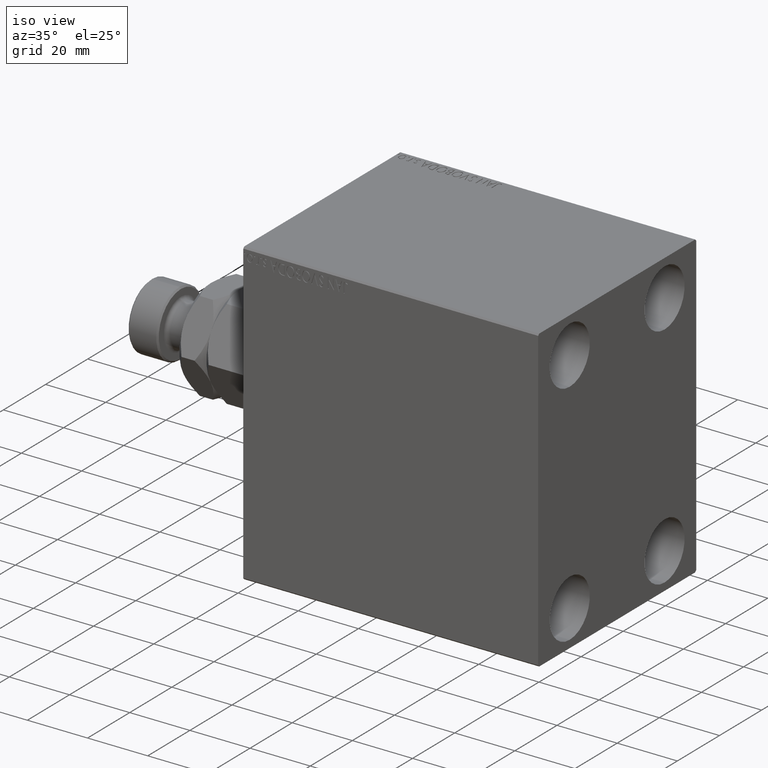
[diagram: clean part render]
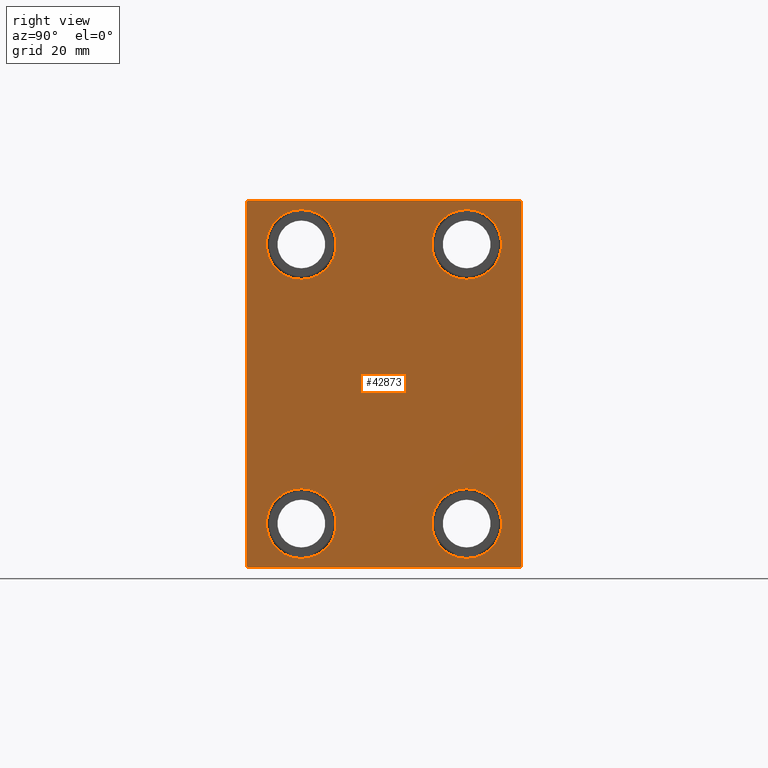
[diagram: tour spotlight — one face highlighted and labeled with its STEP entity id]
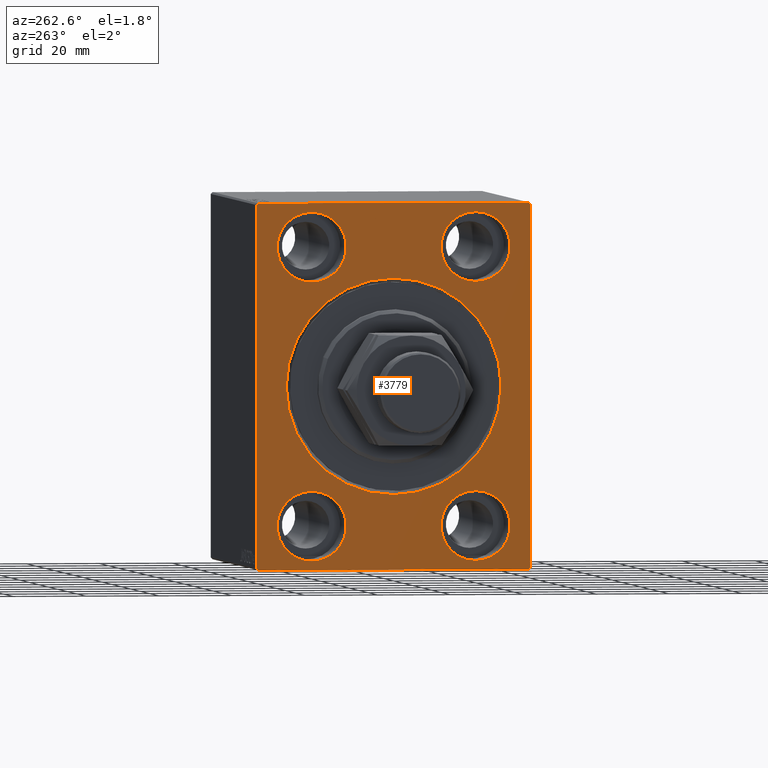
[diagram: tour spotlight — one face highlighted and labeled with its STEP entity id]
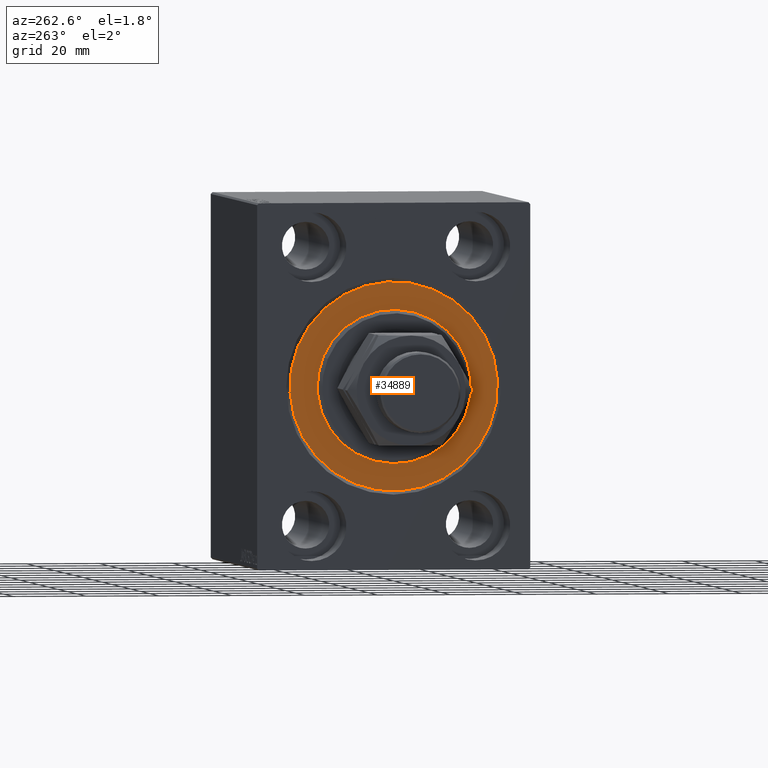
[diagram: tour spotlight — one face highlighted and labeled with its STEP entity id]
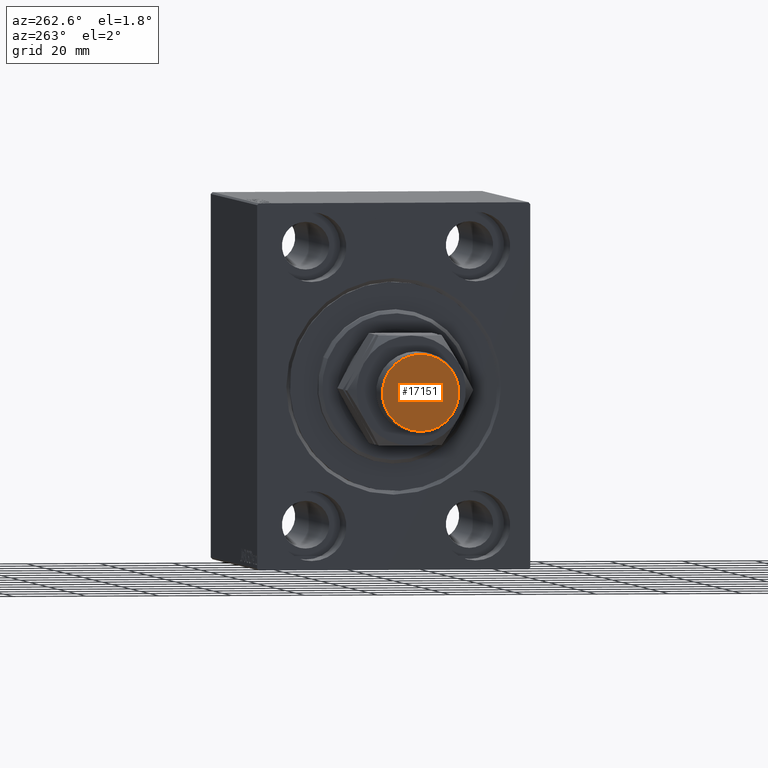
[diagram: tour spotlight — one face highlighted and labeled with its STEP entity id]
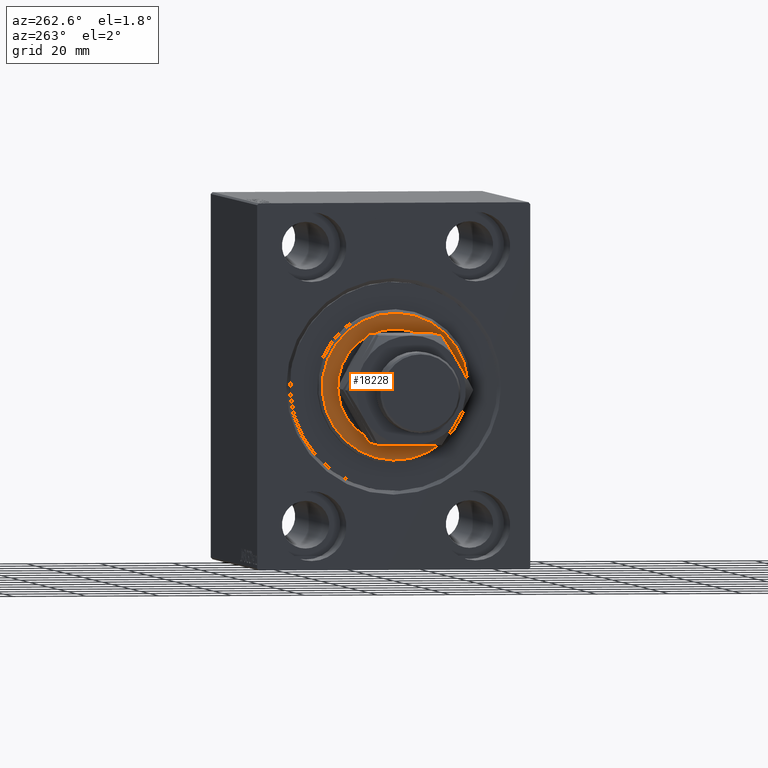
[diagram: tour spotlight — one face highlighted and labeled with its STEP entity id]
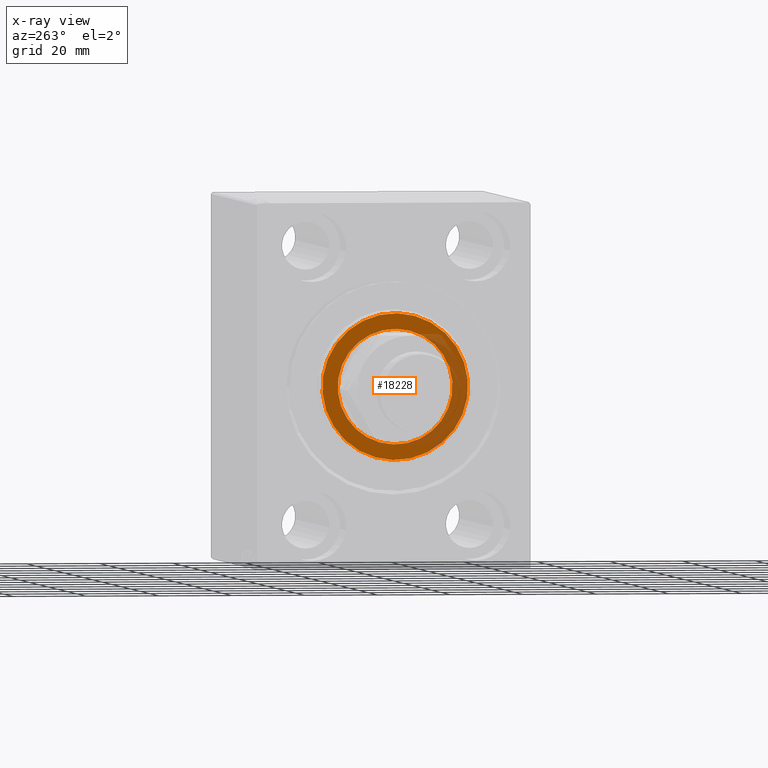
[diagram: x-ray of the same camera — body ghosted, this tour face saturated]
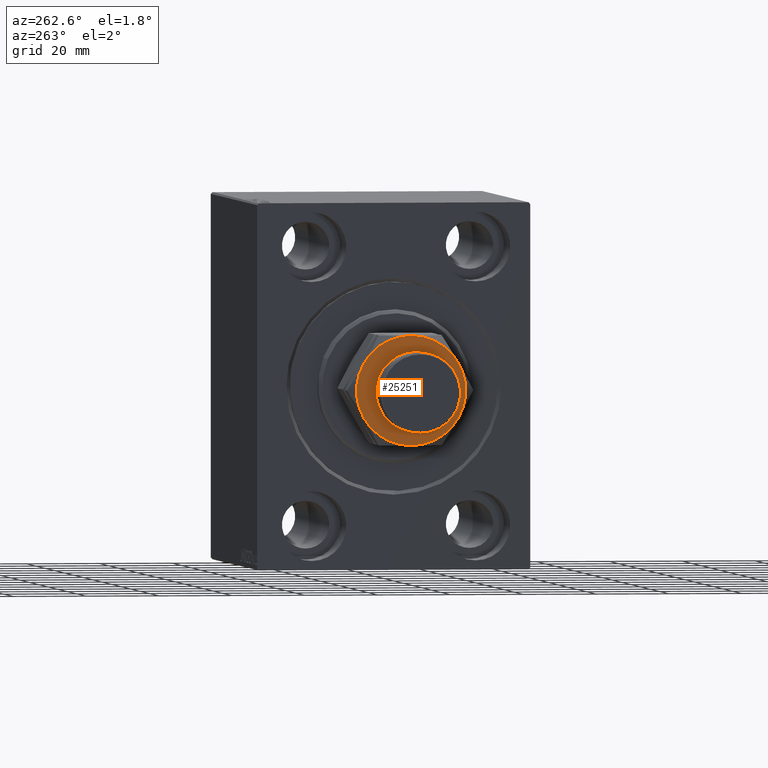
[diagram: tour spotlight — one face highlighted and labeled with its STEP entity id]
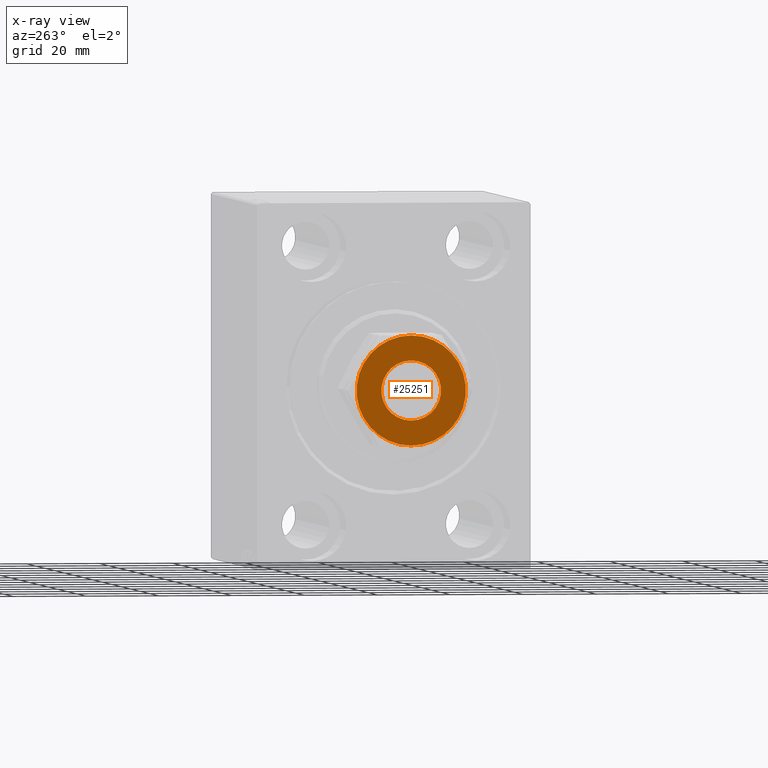
[diagram: x-ray of the same camera — body ghosted, this tour face saturated]
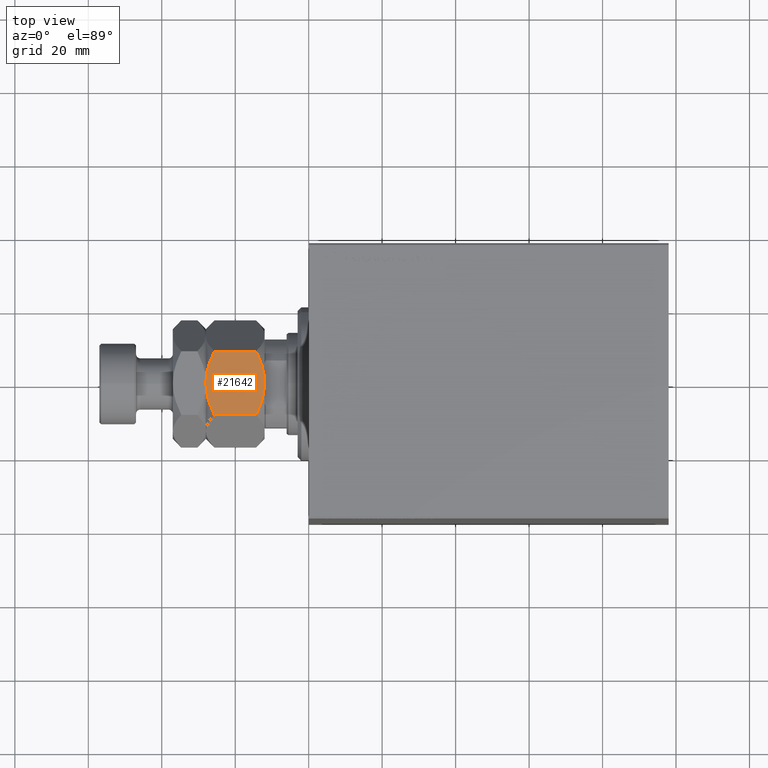
[diagram: tour spotlight — one face highlighted and labeled with its STEP entity id]
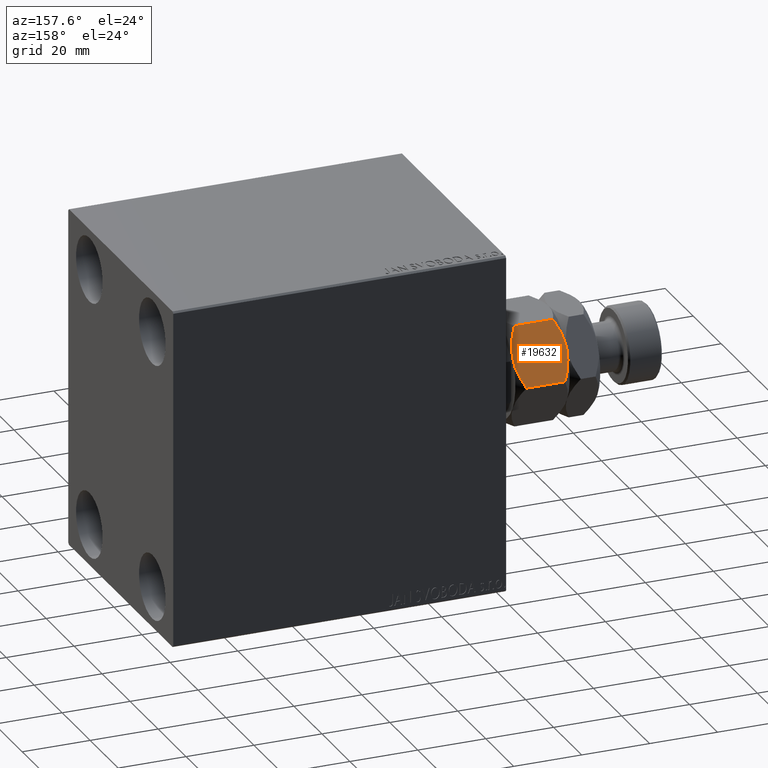
[diagram: tour spotlight — one face highlighted and labeled with its STEP entity id]
A machine part: a face-by-face anatomy tour. The part has 917 B-rep faces; the first image is the clean iso view, then the 8 largest visible faces are spotlighted one at a time (largest first), each with its STEP entity span.

Face 1 — right view, entity #42873. In plain terms, the highlighted planar face has unit normal (1, 0, 0).
Definition (entity closure, byte-faithful):
#31 = AXIS2_PLACEMENT_3D ( 'NONE', #15882, #29327, #37423 ) ;
#106 = DIRECTION ( 'NONE',  ( 0.000000000000000000, -1.000000000000000000, -1.850371707708594316E-16 ) ) ;
#253 = ORIENTED_EDGE ( 'NONE', *, *, #10716, .T. ) ;
#395 = DIRECTION ( 'NONE',  ( 0.000000000000000000, 0.000000000000000000, 1.000000000000000000 ) ) ;
#547 = VECTOR ( 'NONE', #106, 1000.000000000000000 ) ;
#743 = VERTEX_POINT ( 'NONE', #37960 ) ;
#1164 = CIRCLE ( 'NONE', #21132, 9.500000000000001776 ) ;
#1191 = LINE ( 'NONE', #36150, #14537 ) ;
#1375 = DIRECTION ( 'NONE',  ( 0.000000000000000000, 0.000000000000000000, 1.000000000000000000 ) ) ;
#2056 = DIRECTION ( 'NONE',  ( -1.000000000000000000, -0.000000000000000000, -0.000000000000000000 ) ) ;
#2234 = VECTOR ( 'NONE', #13162, 1000.000000000000000 ) ;
#2352 = FACE_BOUND ( 'NONE', #36754, .T. ) ;
#2407 = VERTEX_POINT ( 'NONE', #10305 ) ;
#2612 = EDGE_LOOP ( 'NONE', ( #31656, #40788, #29419, #253, #29408, #35464, #42679, #5958 ) ) ;
#3186 = DIRECTION ( 'NONE',  ( -1.000000000000000000, -0.000000000000000000, -0.000000000000000000 ) ) ;
#3568 = LINE ( 'NONE', #17682, #547 ) ;
#3968 = DIRECTION ( 'NONE',  ( 0.000000000000000000, 0.000000000000000000, 1.000000000000000000 ) ) ;
#4516 = LINE ( 'NONE', #29276, #15136 ) ;
#4999 = VERTEX_POINT ( 'NONE', #20286 ) ;
#5153 = DIRECTION ( 'NONE',  ( 0.000000000000000000, 0.000000000000000000, 1.000000000000000000 ) ) ;
#5250 = CARTESIAN_POINT ( 'NONE',  ( 98.00000000000000000, -22.49999999999999645, 28.49999999999998934 ) ) ;
#5325 = VERTEX_POINT ( 'NONE', #42167 ) ;
#5958 = ORIENTED_EDGE ( 'NONE', *, *, #18185, .T. ) ;
#6180 = EDGE_CURVE ( 'NONE', #43896, #18751, #17336, .T. ) ;
#6765 = EDGE_LOOP ( 'NONE', ( #21879, #40984 ) ) ;
#6845 = CARTESIAN_POINT ( 'NONE',  ( 98.00000000000000000, -22.49999999999999645, 37.99999999999999289 ) ) ;
#7135 = AXIS2_PLACEMENT_3D ( 'NONE', #39059, #3186, #395 ) ;
#8548 = CIRCLE ( 'NONE', #20364, 9.500000000000001776 ) ;
#8619 = DIRECTION ( 'NONE',  ( 0.000000000000000000, 0.000000000000000000, -1.000000000000000000 ) ) ;
#8674 = CIRCLE ( 'NONE', #33826, 9.500000000000001776 ) ;
#9069 = FACE_BOUND ( 'NONE', #18071, .T. ) ;
#9125 = VERTEX_POINT ( 'NONE', #27343 ) ;
#9386 = DIRECTION ( 'NONE',  ( 0.000000000000000000, 0.000000000000000000, 1.000000000000000000 ) ) ;
#9524 = CARTESIAN_POINT ( 'NONE',  ( 98.00000000000000000, 0.000000000000000000, 0.000000000000000000 ) ) ;
#9878 = VERTEX_POINT ( 'NONE', #18160 ) ;
#10305 = CARTESIAN_POINT ( 'NONE',  ( 98.00000000000000000, -36.99999999999999289, -50.00000000000000711 ) ) ;
#10461 = CARTESIAN_POINT ( 'NONE',  ( 98.00000000000000000, 37.50000000000000711, -50.00000000000000000 ) ) ;
#10684 = VERTEX_POINT ( 'NONE', #22110 ) ;
#10689 = CARTESIAN_POINT ( 'NONE',  ( 98.00000000000000000, -22.49999999999999645, 37.99999999999999289 ) ) ;
#10716 = EDGE_CURVE ( 'NONE', #9125, #2407, #4516, .T. ) ;
#11434 = AXIS2_PLACEMENT_3D ( 'NONE', #25968, #44010, #12068 ) ;
#11449 = VERTEX_POINT ( 'NONE', #29988 ) ;
#11839 = CARTESIAN_POINT ( 'NONE',  ( 98.00000000000000000, -43.49999999999998579, 43.49999999999998579 ) ) ;
#11946 = EDGE_CURVE ( 'NONE', #24999, #10684, #43981, .T. ) ;
#12068 = DIRECTION ( 'NONE',  ( 0.000000000000000000, 0.000000000000000000, 1.000000000000000000 ) ) ;
#13070 = EDGE_CURVE ( 'NONE', #11449, #33053, #8548, .T. ) ;
#13162 = DIRECTION ( 'NONE',  ( 0.000000000000000000, 1.000000000000000000, 9.251858538542970348E-17 ) ) ;
#13245 = LINE ( 'NONE', #10461, #42733 ) ;
#14130 = EDGE_CURVE ( 'NONE', #33053, #11449, #33735, .T. ) ;
#14230 = CARTESIAN_POINT ( 'NONE',  ( 98.00000000000000000, 22.49999999999999645, -37.99999999999999289 ) ) ;
#14537 = VECTOR ( 'NONE', #39394, 1000.000000000000114 ) ;
#15136 = VECTOR ( 'NONE', #43393, 1000.000000000000114 ) ;
#15766 = DIRECTION ( 'NONE',  ( 0.000000000000000000, -0.7071067811865474617, -0.7071067811865474617 ) ) ;
#15882 = CARTESIAN_POINT ( 'NONE',  ( 98.00000000000000000, 22.49999999999999645, -37.99999999999999289 ) ) ;
#17022 = DIRECTION ( 'NONE',  ( -1.000000000000000000, -0.000000000000000000, -0.000000000000000000 ) ) ;
#17336 = CIRCLE ( 'NONE', #11434, 9.500000000000001776 ) ;
#17348 = EDGE_CURVE ( 'NONE', #31302, #9125, #20920, .T. ) ;
#17682 = CARTESIAN_POINT ( 'NONE',  ( 98.00000000000000000, 37.49999999999999289, 50.00000000000000711 ) ) ;
#18071 = EDGE_LOOP ( 'NONE', ( #29868, #20890 ) ) ;
#18160 = CARTESIAN_POINT ( 'NONE',  ( 98.00000000000000000, 22.49999999999999645, -28.49999999999998934 ) ) ;
#18185 = EDGE_CURVE ( 'NONE', #41022, #20985, #34149, .T. ) ;
#18429 = EDGE_CURVE ( 'NONE', #20985, #5325, #3568, .T. ) ;
#18751 = VERTEX_POINT ( 'NONE', #25246 ) ;
#19268 = CARTESIAN_POINT ( 'NONE',  ( 98.00000000000000000, 22.50000000000000355, 37.99999999999999289 ) ) ;
#19409 = CARTESIAN_POINT ( 'NONE',  ( 98.00000000000000000, -22.50000000000000711, -37.99999999999999289 ) ) ;
#19441 = EDGE_CURVE ( 'NONE', #743, #41022, #13245, .T. ) ;
#20286 = CARTESIAN_POINT ( 'NONE',  ( 98.00000000000000000, 22.49999999999999645, -47.49999999999999289 ) ) ;
#20364 = AXIS2_PLACEMENT_3D ( 'NONE', #19409, #2056, #1375 ) ;
#20810 = LINE ( 'NONE', #34483, #2234 ) ;
#20890 = ORIENTED_EDGE ( 'NONE', *, *, #34315, .T. ) ;
#20920 = LINE ( 'NONE', #45238, #35327 ) ;
#20985 = VERTEX_POINT ( 'NONE', #37990 ) ;
#21132 = AXIS2_PLACEMENT_3D ( 'NONE', #19268, #33176, #5153 ) ;
#21148 = DIRECTION ( 'NONE',  ( 0.000000000000000000, 0.000000000000000000, -1.000000000000000000 ) ) ;
#21771 = ORIENTED_EDGE ( 'NONE', *, *, #28751, .T. ) ;
#21879 = ORIENTED_EDGE ( 'NONE', *, *, #13070, .T. ) ;
#22018 = VERTEX_POINT ( 'NONE', #22728 ) ;
#22110 = CARTESIAN_POINT ( 'NONE',  ( 98.00000000000000000, -22.49999999999999645, 47.49999999999999289 ) ) ;
#22728 = CARTESIAN_POINT ( 'NONE',  ( 98.00000000000000000, 37.00000000000000711, -50.00000000000000000 ) ) ;
#23718 = CARTESIAN_POINT ( 'NONE',  ( 98.00000000000000000, 43.50000000000026290, 43.49999999999965894 ) ) ;
#24164 = AXIS2_PLACEMENT_3D ( 'NONE', #6845, #17022, #9386 ) ;
#24684 = ORIENTED_EDGE ( 'NONE', *, *, #6180, .T. ) ;
#24999 = VERTEX_POINT ( 'NONE', #5250 ) ;
#25167 = CARTESIAN_POINT ( 'NONE',  ( 98.00000000000000000, 37.49999999999999289, 49.50000000000000000 ) ) ;
#25197 = EDGE_CURVE ( 'NONE', #5325, #31302, #26425, .T. ) ;
#25246 = CARTESIAN_POINT ( 'NONE',  ( 98.00000000000000000, 22.50000000000000355, 28.49999999999998934 ) ) ;
#25968 = CARTESIAN_POINT ( 'NONE',  ( 98.00000000000000000, 22.50000000000000355, 37.99999999999999289 ) ) ;
#26425 = LINE ( 'NONE', #11839, #30222 ) ;
#27110 = FACE_BOUND ( 'NONE', #6765, .T. ) ;
#27130 = CIRCLE ( 'NONE', #24164, 9.500000000000001776 ) ;
#27309 = ORIENTED_EDGE ( 'NONE', *, *, #30069, .T. ) ;
#27343 = CARTESIAN_POINT ( 'NONE',  ( 98.00000000000000000, -37.50000000000000711, -49.49999999999999289 ) ) ;
#27353 = DIRECTION ( 'NONE',  ( 1.000000000000000000, 0.000000000000000000, 0.000000000000000000 ) ) ;
#28070 = CARTESIAN_POINT ( 'NONE',  ( 98.00000000000000000, 22.50000000000000355, 47.49999999999999289 ) ) ;
#28544 = EDGE_CURVE ( 'NONE', #2407, #22018, #20810, .T. ) ;
#28751 = EDGE_CURVE ( 'NONE', #9878, #4999, #33299, .T. ) ;
#28815 = DIRECTION ( 'NONE',  ( 0.000000000000000000, 0.000000000000000000, 1.000000000000000000 ) ) ;
#29276 = CARTESIAN_POINT ( 'NONE',  ( 98.00000000000000000, -43.50000000000000000, -43.50000000000000000 ) ) ;
#29327 = DIRECTION ( 'NONE',  ( -1.000000000000000000, -0.000000000000000000, -0.000000000000000000 ) ) ;
#29408 = ORIENTED_EDGE ( 'NONE', *, *, #28544, .T. ) ;
#29419 = ORIENTED_EDGE ( 'NONE', *, *, #17348, .T. ) ;
#29868 = ORIENTED_EDGE ( 'NONE', *, *, #11946, .T. ) ;
#29988 = CARTESIAN_POINT ( 'NONE',  ( 98.00000000000000000, -22.50000000000000711, -47.49999999999999289 ) ) ;
#30069 = EDGE_CURVE ( 'NONE', #18751, #43896, #1164, .T. ) ;
#30222 = VECTOR ( 'NONE', #15766, 1000.000000000000114 ) ;
#30666 = DIRECTION ( 'NONE',  ( -0.000000000000000000, -0.7071067811865425767, 0.7071067811865525687 ) ) ;
#30827 = FACE_BOUND ( 'NONE', #43297, .T. ) ;
#31302 = VERTEX_POINT ( 'NONE', #40122 ) ;
#31656 = ORIENTED_EDGE ( 'NONE', *, *, #18429, .T. ) ;
#32934 = AXIS2_PLACEMENT_3D ( 'NONE', #10689, #35480, #3968 ) ;
#33053 = VERTEX_POINT ( 'NONE', #35143 ) ;
#33176 = DIRECTION ( 'NONE',  ( -1.000000000000000000, -0.000000000000000000, -0.000000000000000000 ) ) ;
#33299 = CIRCLE ( 'NONE', #31, 9.500000000000001776 ) ;
#33735 = CIRCLE ( 'NONE', #7135, 9.500000000000001776 ) ;
#33798 = EDGE_CURVE ( 'NONE', #22018, #743, #1191, .T. ) ;
#33826 = AXIS2_PLACEMENT_3D ( 'NONE', #14230, #39242, #28815 ) ;
#33846 = PLANE ( 'NONE',  #40557 ) ;
#34149 = LINE ( 'NONE', #23718, #42704 ) ;
#34315 = EDGE_CURVE ( 'NONE', #10684, #24999, #27130, .T. ) ;
#34472 = EDGE_CURVE ( 'NONE', #4999, #9878, #8674, .T. ) ;
#34483 = CARTESIAN_POINT ( 'NONE',  ( 98.00000000000000000, -37.50000000000000711, -50.00000000000000711 ) ) ;
#34557 = DIRECTION ( 'NONE',  ( 0.000000000000000000, -1.387778780781445676E-16, 1.000000000000000000 ) ) ;
#35143 = CARTESIAN_POINT ( 'NONE',  ( 98.00000000000000000, -22.50000000000000711, -28.49999999999998934 ) ) ;
#35327 = VECTOR ( 'NONE', #21148, 1000.000000000000000 ) ;
#35464 = ORIENTED_EDGE ( 'NONE', *, *, #33798, .T. ) ;
#35480 = DIRECTION ( 'NONE',  ( -1.000000000000000000, -0.000000000000000000, -0.000000000000000000 ) ) ;
#36150 = CARTESIAN_POINT ( 'NONE',  ( 98.00000000000000000, 43.50000000000000711, -43.50000000000000711 ) ) ;
#36754 = EDGE_LOOP ( 'NONE', ( #27309, #24684 ) ) ;
#37084 = FACE_OUTER_BOUND ( 'NONE', #2612, .T. ) ;
#37423 = DIRECTION ( 'NONE',  ( 0.000000000000000000, 0.000000000000000000, 1.000000000000000000 ) ) ;
#37960 = CARTESIAN_POINT ( 'NONE',  ( 98.00000000000000000, 37.50000000000000711, -49.50000000000000000 ) ) ;
#37990 = CARTESIAN_POINT ( 'NONE',  ( 98.00000000000000000, 36.99999999999999289, 50.00000000000000711 ) ) ;
#39059 = CARTESIAN_POINT ( 'NONE',  ( 98.00000000000000000, -22.50000000000000711, -37.99999999999999289 ) ) ;
#39242 = DIRECTION ( 'NONE',  ( -1.000000000000000000, -0.000000000000000000, -0.000000000000000000 ) ) ;
#39394 = DIRECTION ( 'NONE',  ( -0.000000000000000000, 0.7071067811865474617, 0.7071067811865474617 ) ) ;
#40122 = CARTESIAN_POINT ( 'NONE',  ( 98.00000000000000000, -37.50000000000000711, 49.49999999999997868 ) ) ;
#40557 = AXIS2_PLACEMENT_3D ( 'NONE', #9524, #27353, #8619 ) ;
#40788 = ORIENTED_EDGE ( 'NONE', *, *, #25197, .T. ) ;
#40984 = ORIENTED_EDGE ( 'NONE', *, *, #14130, .T. ) ;
#41022 = VERTEX_POINT ( 'NONE', #25167 ) ;
#42167 = CARTESIAN_POINT ( 'NONE',  ( 98.00000000000000000, -36.99999999999999289, 49.99999999999999289 ) ) ;
#42679 = ORIENTED_EDGE ( 'NONE', *, *, #19441, .T. ) ;
#42704 = VECTOR ( 'NONE', #30666, 999.9999999999998863 ) ;
#42733 = VECTOR ( 'NONE', #34557, 1000.000000000000000 ) ;
#42873 = ADVANCED_FACE ( 'NONE', ( #30827, #9069, #2352, #27110, #37084 ), #33846, .T. ) ;
#43297 = EDGE_LOOP ( 'NONE', ( #44142, #21771 ) ) ;
#43393 = DIRECTION ( 'NONE',  ( -0.000000000000000000, 0.7071067811865474617, -0.7071067811865474617 ) ) ;
#43896 = VERTEX_POINT ( 'NONE', #28070 ) ;
#43981 = CIRCLE ( 'NONE', #32934, 9.500000000000001776 ) ;
#44010 = DIRECTION ( 'NONE',  ( -1.000000000000000000, -0.000000000000000000, -0.000000000000000000 ) ) ;
#44142 = ORIENTED_EDGE ( 'NONE', *, *, #34472, .T. ) ;
#45238 = CARTESIAN_POINT ( 'NONE',  ( 98.00000000000000000, -37.50000000000000711, 49.99999999999999289 ) ) ;

Face 2 — auxiliary view, entity #3779. In plain terms, the highlighted planar face has unit normal (1, 0, 0).
Definition (entity closure, byte-faithful):
#328 = CARTESIAN_POINT ( 'NONE',  ( 0.000000000000000000, 0.000000000000000000, 0.000000000000000000 ) ) ;
#475 = AXIS2_PLACEMENT_3D ( 'NONE', #31213, #38623, #42302 ) ;
#524 = DIRECTION ( 'NONE',  ( -0.000000000000000000, 0.7071067811865474617, 0.7071067811865474617 ) ) ;
#766 = CARTESIAN_POINT ( 'NONE',  ( 0.000000000000000000, -36.99999999999999289, 49.99999999999999289 ) ) ;
#988 = VERTEX_POINT ( 'NONE', #41380 ) ;
#1184 = DIRECTION ( 'NONE',  ( 0.000000000000000000, 0.000000000000000000, 1.000000000000000000 ) ) ;
#1235 = CIRCLE ( 'NONE', #475, 9.500000000000001776 ) ;
#1639 = ORIENTED_EDGE ( 'NONE', *, *, #12056, .F. ) ;
#1929 = CARTESIAN_POINT ( 'NONE',  ( 0.000000000000000000, 37.49999999999999289, 49.50000000000000000 ) ) ;
#2358 = EDGE_CURVE ( 'NONE', #32336, #33010, #12031, .T. ) ;
#2520 = CARTESIAN_POINT ( 'NONE',  ( 0.000000000000000000, 37.50000000000000711, -49.50000000000000000 ) ) ;
#2715 = VERTEX_POINT ( 'NONE', #40713 ) ;
#2913 = VERTEX_POINT ( 'NONE', #14503 ) ;
#3149 = FACE_BOUND ( 'NONE', #8477, .T. ) ;
#3273 = AXIS2_PLACEMENT_3D ( 'NONE', #13506, #30199, #14186 ) ;
#3779 = ADVANCED_FACE ( 'NONE', ( #26766, #3149, #27461, #34653, #41807, #21423 ), #21862, .F. ) ;
#4013 = EDGE_CURVE ( 'NONE', #33010, #32336, #21009, .T. ) ;
#4069 = CARTESIAN_POINT ( 'NONE',  ( 0.000000000000000000, 22.49999999999999645, -47.49999999999999289 ) ) ;
#4112 = VERTEX_POINT ( 'NONE', #766 ) ;
#4503 = VERTEX_POINT ( 'NONE', #39363 ) ;
#4650 = CARTESIAN_POINT ( 'NONE',  ( 0.000000000000000000, -22.49999999999999645, 37.99999999999999289 ) ) ;
#4669 = LINE ( 'NONE', #43318, #15421 ) ;
#5802 = VERTEX_POINT ( 'NONE', #27240 ) ;
#6136 = EDGE_LOOP ( 'NONE', ( #29880, #1639 ) ) ;
#6345 = EDGE_CURVE ( 'NONE', #2913, #4503, #13908, .T. ) ;
#6773 = DIRECTION ( 'NONE',  ( 0.000000000000000000, 0.000000000000000000, 1.000000000000000000 ) ) ;
#6961 = DIRECTION ( 'NONE',  ( -0.000000000000000000, 0.7071067811865425767, -0.7071067811865525687 ) ) ;
#7002 = ORIENTED_EDGE ( 'NONE', *, *, #2358, .F. ) ;
#7190 = CARTESIAN_POINT ( 'NONE',  ( 0.000000000000000000, 36.99999999999999289, 50.00000000000000711 ) ) ;
#8477 = EDGE_LOOP ( 'NONE', ( #32416, #24031 ) ) ;
#8513 = VERTEX_POINT ( 'NONE', #4069 ) ;
#8589 = ORIENTED_EDGE ( 'NONE', *, *, #17939, .F. ) ;
#9433 = VERTEX_POINT ( 'NONE', #24716 ) ;
#9466 = AXIS2_PLACEMENT_3D ( 'NONE', #38020, #17631, #6773 ) ;
#10076 = EDGE_LOOP ( 'NONE', ( #8589, #25253, #25072, #17785, #22678, #24229, #10562, #20120 ) ) ;
#10246 = CARTESIAN_POINT ( 'NONE',  ( 0.000000000000000000, 37.50000000000000711, -49.50000000000000000 ) ) ;
#10402 = ORIENTED_EDGE ( 'NONE', *, *, #31129, .T. ) ;
#10562 = ORIENTED_EDGE ( 'NONE', *, *, #6345, .F. ) ;
#10942 = AXIS2_PLACEMENT_3D ( 'NONE', #22833, #26765, #35044 ) ;
#11617 = VECTOR ( 'NONE', #6961, 999.9999999999998863 ) ;
#11648 = CARTESIAN_POINT ( 'NONE',  ( 0.000000000000000000, 22.50000000000000355, 28.49999999999998934 ) ) ;
#11655 = LINE ( 'NONE', #44062, #40531 ) ;
#11749 = DIRECTION ( 'NONE',  ( 0.000000000000000000, -1.000000000000000000, -1.850371707708594316E-16 ) ) ;
#12031 = CIRCLE ( 'NONE', #35040, 9.500000000000001776 ) ;
#12056 = EDGE_CURVE ( 'NONE', #5802, #23806, #12953, .T. ) ;
#12384 = CIRCLE ( 'NONE', #24992, 9.500000000000001776 ) ;
#12924 = DIRECTION ( 'NONE',  ( -1.000000000000000000, 0.000000000000000000, 0.000000000000000000 ) ) ;
#12953 = CIRCLE ( 'NONE', #35873, 9.500000000000001776 ) ;
#12981 = AXIS2_PLACEMENT_3D ( 'NONE', #328, #17454, #29007 ) ;
#13506 = CARTESIAN_POINT ( 'NONE',  ( 0.000000000000000000, 22.50000000000000355, 37.99999999999999289 ) ) ;
#13847 = CARTESIAN_POINT ( 'NONE',  ( 0.000000000000000000, -22.50000000000000711, -28.49999999999998934 ) ) ;
#13908 = LINE ( 'NONE', #24554, #23281 ) ;
#14027 = DIRECTION ( 'NONE',  ( 1.000000000000000000, 0.000000000000000000, 0.000000000000000000 ) ) ;
#14186 = DIRECTION ( 'NONE',  ( 0.000000000000000000, 0.000000000000000000, 1.000000000000000000 ) ) ;
#14460 = CARTESIAN_POINT ( 'NONE',  ( 0.000000000000000000, 0.000000000000000000, 0.000000000000000000 ) ) ;
#14468 = CARTESIAN_POINT ( 'NONE',  ( 0.000000000000000000, 0.000000000000000000, 29.50000000000001421 ) ) ;
#14503 = CARTESIAN_POINT ( 'NONE',  ( 0.000000000000000000, -36.99999999999999289, -50.00000000000000711 ) ) ;
#14683 = CARTESIAN_POINT ( 'NONE',  ( 0.000000000000000000, -22.49999999999999645, 47.49999999999999289 ) ) ;
#14750 = DIRECTION ( 'NONE',  ( 1.000000000000000000, 0.000000000000000000, 0.000000000000000000 ) ) ;
#15421 = VECTOR ( 'NONE', #524, 1000.000000000000114 ) ;
#15650 = VERTEX_POINT ( 'NONE', #39870 ) ;
#17051 = LINE ( 'NONE', #17274, #27172 ) ;
#17153 = EDGE_CURVE ( 'NONE', #24809, #2715, #35289, .T. ) ;
#17274 = CARTESIAN_POINT ( 'NONE',  ( 0.000000000000000000, -37.50000000000000711, 49.99999999999999289 ) ) ;
#17454 = DIRECTION ( 'NONE',  ( 1.000000000000000000, 0.000000000000000000, 0.000000000000000000 ) ) ;
#17631 = DIRECTION ( 'NONE',  ( -1.000000000000000000, 0.000000000000000000, 0.000000000000000000 ) ) ;
#17659 = VECTOR ( 'NONE', #11749, 1000.000000000000000 ) ;
#17785 = ORIENTED_EDGE ( 'NONE', *, *, #35158, .T. ) ;
#17866 = CARTESIAN_POINT ( 'NONE',  ( 0.000000000000000000, 22.50000000000000355, 47.49999999999999289 ) ) ;
#17939 = EDGE_CURVE ( 'NONE', #15650, #988, #17051, .T. ) ;
#18398 = DIRECTION ( 'NONE',  ( 0.000000000000000000, 0.000000000000000000, 1.000000000000000000 ) ) ;
#19440 = EDGE_CURVE ( 'NONE', #26739, #8513, #29417, .T. ) ;
#20120 = ORIENTED_EDGE ( 'NONE', *, *, #31534, .T. ) ;
#20123 = CARTESIAN_POINT ( 'NONE',  ( 0.000000000000000000, 3.612708057484693970E-15, -29.50000000000001421 ) ) ;
#20806 = DIRECTION ( 'NONE',  ( 0.000000000000000000, 0.000000000000000000, -1.000000000000000000 ) ) ;
#20882 = DIRECTION ( 'NONE',  ( -0.000000000000000000, -0.7071067811865474617, 0.7071067811865474617 ) ) ;
#21009 = CIRCLE ( 'NONE', #3273, 9.500000000000001776 ) ;
#21288 = VERTEX_POINT ( 'NONE', #2520 ) ;
#21423 = FACE_OUTER_BOUND ( 'NONE', #10076, .T. ) ;
#21561 = CARTESIAN_POINT ( 'NONE',  ( 0.000000000000000000, -36.99999999999999289, -50.00000000000000711 ) ) ;
#21862 = PLANE ( 'NONE',  #38767 ) ;
#22315 = DIRECTION ( 'NONE',  ( 0.000000000000000000, -1.387778780781445676E-16, 1.000000000000000000 ) ) ;
#22678 = ORIENTED_EDGE ( 'NONE', *, *, #23906, .F. ) ;
#22833 = CARTESIAN_POINT ( 'NONE',  ( 0.000000000000000000, 22.49999999999999645, -37.99999999999999289 ) ) ;
#23281 = VECTOR ( 'NONE', #27352, 1000.000000000000000 ) ;
#23561 = AXIS2_PLACEMENT_3D ( 'NONE', #28209, #14750, #20806 ) ;
#23806 = VERTEX_POINT ( 'NONE', #14683 ) ;
#23906 = EDGE_CURVE ( 'NONE', #21288, #32093, #11655, .T. ) ;
#24031 = ORIENTED_EDGE ( 'NONE', *, *, #35559, .F. ) ;
#24229 = ORIENTED_EDGE ( 'NONE', *, *, #44750, .T. ) ;
#24370 = DIRECTION ( 'NONE',  ( 0.000000000000000000, -0.7071067811865474617, -0.7071067811865474617 ) ) ;
#24544 = LINE ( 'NONE', #7190, #11617 ) ;
#24554 = CARTESIAN_POINT ( 'NONE',  ( 0.000000000000000000, -37.50000000000000711, -50.00000000000000711 ) ) ;
#24676 = EDGE_LOOP ( 'NONE', ( #25667, #38061 ) ) ;
#24716 = CARTESIAN_POINT ( 'NONE',  ( 0.000000000000000000, 36.99999999999999289, 50.00000000000000711 ) ) ;
#24809 = VERTEX_POINT ( 'NONE', #13847 ) ;
#24992 = AXIS2_PLACEMENT_3D ( 'NONE', #44642, #12924, #27292 ) ;
#25072 = ORIENTED_EDGE ( 'NONE', *, *, #39184, .F. ) ;
#25253 = ORIENTED_EDGE ( 'NONE', *, *, #42089, .T. ) ;
#25521 = VERTEX_POINT ( 'NONE', #20123 ) ;
#25667 = ORIENTED_EDGE ( 'NONE', *, *, #17153, .F. ) ;
#26739 = VERTEX_POINT ( 'NONE', #29764 ) ;
#26765 = DIRECTION ( 'NONE',  ( -1.000000000000000000, 0.000000000000000000, 0.000000000000000000 ) ) ;
#26766 = FACE_BOUND ( 'NONE', #35653, .T. ) ;
#27172 = VECTOR ( 'NONE', #35115, 1000.000000000000000 ) ;
#27240 = CARTESIAN_POINT ( 'NONE',  ( 0.000000000000000000, -22.49999999999999645, 28.49999999999998934 ) ) ;
#27292 = DIRECTION ( 'NONE',  ( 0.000000000000000000, 0.000000000000000000, 1.000000000000000000 ) ) ;
#27352 = DIRECTION ( 'NONE',  ( 0.000000000000000000, 1.000000000000000000, 9.251858538542970348E-17 ) ) ;
#27461 = FACE_BOUND ( 'NONE', #6136, .T. ) ;
#28209 = CARTESIAN_POINT ( 'NONE',  ( 0.000000000000000000, 0.000000000000000000, 0.000000000000000000 ) ) ;
#28476 = EDGE_LOOP ( 'NONE', ( #7002, #40228 ) ) ;
#28598 = CARTESIAN_POINT ( 'NONE',  ( 0.000000000000000000, -22.50000000000000711, -37.99999999999999289 ) ) ;
#28943 = VERTEX_POINT ( 'NONE', #14468 ) ;
#29007 = DIRECTION ( 'NONE',  ( 0.000000000000000000, 0.000000000000000000, -1.000000000000000000 ) ) ;
#29417 = CIRCLE ( 'NONE', #9466, 9.500000000000001776 ) ;
#29764 = CARTESIAN_POINT ( 'NONE',  ( 0.000000000000000000, 22.49999999999999645, -28.49999999999998934 ) ) ;
#29880 = ORIENTED_EDGE ( 'NONE', *, *, #36074, .F. ) ;
#30199 = DIRECTION ( 'NONE',  ( -1.000000000000000000, 0.000000000000000000, 0.000000000000000000 ) ) ;
#30406 = ORIENTED_EDGE ( 'NONE', *, *, #42260, .T. ) ;
#30756 = VECTOR ( 'NONE', #20882, 1000.000000000000114 ) ;
#31129 = EDGE_CURVE ( 'NONE', #25521, #28943, #33728, .T. ) ;
#31213 = CARTESIAN_POINT ( 'NONE',  ( 0.000000000000000000, -22.50000000000000711, -37.99999999999999289 ) ) ;
#31534 = EDGE_CURVE ( 'NONE', #2913, #988, #41950, .T. ) ;
#31607 = CARTESIAN_POINT ( 'NONE',  ( 0.000000000000000000, 22.50000000000000355, 37.99999999999999289 ) ) ;
#32093 = VERTEX_POINT ( 'NONE', #1929 ) ;
#32277 = DIRECTION ( 'NONE',  ( -1.000000000000000000, 0.000000000000000000, 0.000000000000000000 ) ) ;
#32336 = VERTEX_POINT ( 'NONE', #17866 ) ;
#32416 = ORIENTED_EDGE ( 'NONE', *, *, #19440, .F. ) ;
#32901 = DIRECTION ( 'NONE',  ( -1.000000000000000000, 0.000000000000000000, 0.000000000000000000 ) ) ;
#33010 = VERTEX_POINT ( 'NONE', #11648 ) ;
#33041 = EDGE_CURVE ( 'NONE', #2715, #24809, #1235, .T. ) ;
#33065 = LINE ( 'NONE', #36307, #17659 ) ;
#33728 = CIRCLE ( 'NONE', #12981, 29.50000000000001421 ) ;
#34567 = AXIS2_PLACEMENT_3D ( 'NONE', #28598, #35566, #18398 ) ;
#34653 = FACE_BOUND ( 'NONE', #28476, .T. ) ;
#34859 = DIRECTION ( 'NONE',  ( 0.000000000000000000, 0.000000000000000000, 1.000000000000000000 ) ) ;
#35040 = AXIS2_PLACEMENT_3D ( 'NONE', #31607, #32277, #34859 ) ;
#35044 = DIRECTION ( 'NONE',  ( 0.000000000000000000, 0.000000000000000000, 1.000000000000000000 ) ) ;
#35115 = DIRECTION ( 'NONE',  ( 0.000000000000000000, 0.000000000000000000, -1.000000000000000000 ) ) ;
#35158 = EDGE_CURVE ( 'NONE', #9433, #32093, #24544, .T. ) ;
#35289 = CIRCLE ( 'NONE', #34567, 9.500000000000001776 ) ;
#35409 = CIRCLE ( 'NONE', #23561, 29.50000000000001421 ) ;
#35559 = EDGE_CURVE ( 'NONE', #8513, #26739, #41249, .T. ) ;
#35566 = DIRECTION ( 'NONE',  ( -1.000000000000000000, 0.000000000000000000, 0.000000000000000000 ) ) ;
#35653 = EDGE_LOOP ( 'NONE', ( #30406, #10402 ) ) ;
#35873 = AXIS2_PLACEMENT_3D ( 'NONE', #4650, #32901, #1184 ) ;
#36074 = EDGE_CURVE ( 'NONE', #23806, #5802, #12384, .T. ) ;
#36307 = CARTESIAN_POINT ( 'NONE',  ( 0.000000000000000000, 37.49999999999999289, 50.00000000000000711 ) ) ;
#38020 = CARTESIAN_POINT ( 'NONE',  ( 0.000000000000000000, 22.49999999999999645, -37.99999999999999289 ) ) ;
#38061 = ORIENTED_EDGE ( 'NONE', *, *, #33041, .F. ) ;
#38623 = DIRECTION ( 'NONE',  ( -1.000000000000000000, 0.000000000000000000, 0.000000000000000000 ) ) ;
#38767 = AXIS2_PLACEMENT_3D ( 'NONE', #14460, #14027, #42707 ) ;
#39184 = EDGE_CURVE ( 'NONE', #9433, #4112, #33065, .T. ) ;
#39363 = CARTESIAN_POINT ( 'NONE',  ( 0.000000000000000000, 37.00000000000000711, -50.00000000000000000 ) ) ;
#39870 = CARTESIAN_POINT ( 'NONE',  ( 0.000000000000000000, -37.50000000000000711, 49.49999999999997868 ) ) ;
#40228 = ORIENTED_EDGE ( 'NONE', *, *, #4013, .F. ) ;
#40531 = VECTOR ( 'NONE', #22315, 1000.000000000000000 ) ;
#40713 = CARTESIAN_POINT ( 'NONE',  ( 0.000000000000000000, -22.50000000000000711, -47.49999999999999289 ) ) ;
#41249 = CIRCLE ( 'NONE', #10942, 9.500000000000001776 ) ;
#41380 = CARTESIAN_POINT ( 'NONE',  ( 0.000000000000000000, -37.50000000000000711, -49.49999999999999289 ) ) ;
#41807 = FACE_BOUND ( 'NONE', #24676, .T. ) ;
#41950 = LINE ( 'NONE', #21561, #30756 ) ;
#41962 = LINE ( 'NONE', #10246, #43544 ) ;
#42089 = EDGE_CURVE ( 'NONE', #15650, #4112, #4669, .T. ) ;
#42260 = EDGE_CURVE ( 'NONE', #28943, #25521, #35409, .T. ) ;
#42302 = DIRECTION ( 'NONE',  ( 0.000000000000000000, 0.000000000000000000, 1.000000000000000000 ) ) ;
#42707 = DIRECTION ( 'NONE',  ( 0.000000000000000000, 0.000000000000000000, -1.000000000000000000 ) ) ;
#43318 = CARTESIAN_POINT ( 'NONE',  ( 0.000000000000000000, -37.50000000000000711, 49.49999999999997868 ) ) ;
#43544 = VECTOR ( 'NONE', #24370, 1000.000000000000114 ) ;
#44062 = CARTESIAN_POINT ( 'NONE',  ( 0.000000000000000000, 37.50000000000000711, -50.00000000000000000 ) ) ;
#44642 = CARTESIAN_POINT ( 'NONE',  ( 0.000000000000000000, -22.49999999999999645, 37.99999999999999289 ) ) ;
#44750 = EDGE_CURVE ( 'NONE', #21288, #4503, #41962, .T. ) ;

Face 3 — auxiliary view, entity #34889. In plain terms, the highlighted planar face has unit normal (1, 0, -0).
Definition (entity closure, byte-faithful):
#14 = DIRECTION ( 'NONE',  ( -1.000000000000000000, 0.000000000000000000, 0.000000000000000000 ) ) ;
#142 = CARTESIAN_POINT ( 'NONE',  ( 0.000000000000000000, 0.000000000000000000, 21.00000000000000000 ) ) ;
#1197 = FACE_BOUND ( 'NONE', #9245, .T. ) ;
#1656 = CARTESIAN_POINT ( 'NONE',  ( 0.000000000000000000, 0.000000000000000000, 0.000000000000000000 ) ) ;
#1989 = CARTESIAN_POINT ( 'NONE',  ( 0.000000000000000000, 0.000000000000000000, 0.000000000000000000 ) ) ;
#2641 = EDGE_CURVE ( 'NONE', #21265, #4005, #9139, .T. ) ;
#2761 = AXIS2_PLACEMENT_3D ( 'NONE', #8374, #5127, #22946 ) ;
#3102 = ORIENTED_EDGE ( 'NONE', *, *, #2641, .F. ) ;
#4005 = VERTEX_POINT ( 'NONE', #20453 ) ;
#5127 = DIRECTION ( 'NONE',  ( -1.000000000000000000, 0.000000000000000000, 0.000000000000000000 ) ) ;
#5864 = CIRCLE ( 'NONE', #21389, 28.50000000000000000 ) ;
#8328 = CARTESIAN_POINT ( 'NONE',  ( 0.000000000000000000, 3.490243377569956456E-15, 28.50000000000000000 ) ) ;
#8374 = CARTESIAN_POINT ( 'NONE',  ( 0.000000000000000000, 0.000000000000000000, 0.000000000000000000 ) ) ;
#9139 = CIRCLE ( 'NONE', #41665, 28.50000000000000000 ) ;
#9245 = EDGE_LOOP ( 'NONE', ( #24610, #18622 ) ) ;
#9588 = AXIS2_PLACEMENT_3D ( 'NONE', #32226, #28966, #14392 ) ;
#13219 = AXIS2_PLACEMENT_3D ( 'NONE', #1656, #22706, #26410 ) ;
#14392 = DIRECTION ( 'NONE',  ( 0.000000000000000000, 0.000000000000000000, -1.000000000000000000 ) ) ;
#16212 = VERTEX_POINT ( 'NONE', #142 ) ;
#18622 = ORIENTED_EDGE ( 'NONE', *, *, #38019, .F. ) ;
#19467 = FACE_OUTER_BOUND ( 'NONE', #41666, .T. ) ;
#20453 = CARTESIAN_POINT ( 'NONE',  ( 0.000000000000000000, 0.000000000000000000, -28.50000000000000000 ) ) ;
#21265 = VERTEX_POINT ( 'NONE', #8328 ) ;
#21389 = AXIS2_PLACEMENT_3D ( 'NONE', #1989, #26748, #27204 ) ;
#22706 = DIRECTION ( 'NONE',  ( 1.000000000000000000, -0.000000000000000000, 0.000000000000000000 ) ) ;
#22881 = DIRECTION ( 'NONE',  ( 0.000000000000000000, 0.000000000000000000, 1.000000000000000000 ) ) ;
#22946 = DIRECTION ( 'NONE',  ( 0.000000000000000000, 0.000000000000000000, 1.000000000000000000 ) ) ;
#23629 = CIRCLE ( 'NONE', #9588, 21.00000000000000000 ) ;
#24610 = ORIENTED_EDGE ( 'NONE', *, *, #44896, .F. ) ;
#25212 = CARTESIAN_POINT ( 'NONE',  ( 0.000000000000000000, 0.000000000000000000, 0.000000000000000000 ) ) ;
#25305 = CARTESIAN_POINT ( 'NONE',  ( 0.000000000000000000, 2.571758278209441661E-15, -21.00000000000000000 ) ) ;
#26410 = DIRECTION ( 'NONE',  ( 0.000000000000000000, 0.000000000000000000, -1.000000000000000000 ) ) ;
#26748 = DIRECTION ( 'NONE',  ( -1.000000000000000000, 0.000000000000000000, 0.000000000000000000 ) ) ;
#27204 = DIRECTION ( 'NONE',  ( 0.000000000000000000, 0.000000000000000000, 1.000000000000000000 ) ) ;
#28966 = DIRECTION ( 'NONE',  ( 1.000000000000000000, -0.000000000000000000, 0.000000000000000000 ) ) ;
#31193 = VERTEX_POINT ( 'NONE', #25305 ) ;
#32226 = CARTESIAN_POINT ( 'NONE',  ( 0.000000000000000000, 0.000000000000000000, 0.000000000000000000 ) ) ;
#34889 = ADVANCED_FACE ( 'NONE', ( #1197, #19467 ), #43769, .F. ) ;
#38019 = EDGE_CURVE ( 'NONE', #31193, #16212, #45755, .T. ) ;
#40262 = EDGE_CURVE ( 'NONE', #4005, #21265, #5864, .T. ) ;
#41665 = AXIS2_PLACEMENT_3D ( 'NONE', #25212, #14, #22881 ) ;
#41666 = EDGE_LOOP ( 'NONE', ( #43449, #3102 ) ) ;
#43449 = ORIENTED_EDGE ( 'NONE', *, *, #40262, .F. ) ;
#43769 = PLANE ( 'NONE',  #2761 ) ;
#44896 = EDGE_CURVE ( 'NONE', #16212, #31193, #23629, .T. ) ;
#45755 = CIRCLE ( 'NONE', #13219, 21.00000000000000000 ) ;

Face 4 — auxiliary view, entity #17151. In plain terms, the highlighted planar face has unit normal (-1, 0, 0).
Definition (entity closure, byte-faithful):
#582 = AXIS2_PLACEMENT_3D ( 'NONE', #2884, #38310, #23938 ) ;
#2884 = CARTESIAN_POINT ( 'NONE',  ( 0.000000000000000000, 0.000000000000000000, 45.00000000000000711 ) ) ;
#3498 = AXIS2_PLACEMENT_3D ( 'NONE', #7319, #39943, #43392 ) ;
#3507 = VERTEX_POINT ( 'NONE', #27101 ) ;
#7319 = CARTESIAN_POINT ( 'NONE',  ( 0.000000000000000000, 0.000000000000000000, 45.00000000000000711 ) ) ;
#7735 = AXIS2_PLACEMENT_3D ( 'NONE', #14924, #21206, #35783 ) ;
#11450 = ORIENTED_EDGE ( 'NONE', *, *, #29635, .T. ) ;
#14243 = CIRCLE ( 'NONE', #7735, 10.50000000000000178 ) ;
#14924 = CARTESIAN_POINT ( 'NONE',  ( 0.000000000000000000, 0.000000000000000000, 45.00000000000000711 ) ) ;
#17151 = ADVANCED_FACE ( 'NONE', ( #29275 ), #35998, .T. ) ;
#18315 = CARTESIAN_POINT ( 'NONE',  ( -10.50000000000000178, 0.000000000000000000, 45.00000000000000711 ) ) ;
#18340 = EDGE_CURVE ( 'NONE', #3507, #23352, #20538, .T. ) ;
#20538 = CIRCLE ( 'NONE', #582, 10.50000000000000178 ) ;
#21206 = DIRECTION ( 'NONE',  ( 0.000000000000000000, 0.000000000000000000, 1.000000000000000000 ) ) ;
#23352 = VERTEX_POINT ( 'NONE', #18315 ) ;
#23938 = DIRECTION ( 'NONE',  ( 1.000000000000000000, 0.000000000000000000, 0.000000000000000000 ) ) ;
#27101 = CARTESIAN_POINT ( 'NONE',  ( 10.50000000000000178, 1.316495309083404815E-15, 45.00000000000000711 ) ) ;
#29275 = FACE_OUTER_BOUND ( 'NONE', #42860, .T. ) ;
#29635 = EDGE_CURVE ( 'NONE', #23352, #3507, #14243, .T. ) ;
#35783 = DIRECTION ( 'NONE',  ( 1.000000000000000000, 0.000000000000000000, 0.000000000000000000 ) ) ;
#35998 = PLANE ( 'NONE',  #3498 ) ;
#38310 = DIRECTION ( 'NONE',  ( 0.000000000000000000, 0.000000000000000000, 1.000000000000000000 ) ) ;
#39943 = DIRECTION ( 'NONE',  ( 0.000000000000000000, 0.000000000000000000, 1.000000000000000000 ) ) ;
#41411 = ORIENTED_EDGE ( 'NONE', *, *, #18340, .T. ) ;
#42860 = EDGE_LOOP ( 'NONE', ( #11450, #41411 ) ) ;
#43392 = DIRECTION ( 'NONE',  ( 1.000000000000000000, 0.000000000000000000, -0.000000000000000000 ) ) ;

Face 5 — auxiliary view, entity #18228. An x-ray twin of the same camera follows (body ghosted, this face saturated) — the face is partly hidden behind the body. In plain terms, the highlighted planar face has unit normal (-1, 0, 0).
Definition (entity closure, byte-faithful):
#1288 = EDGE_LOOP ( 'NONE', ( #7631, #18146 ) ) ;
#2001 = EDGE_CURVE ( 'NONE', #20137, #19054, #3210, .T. ) ;
#3210 = CIRCLE ( 'NONE', #6140, 15.75000000000000000 ) ;
#3715 = ORIENTED_EDGE ( 'NONE', *, *, #2001, .T. ) ;
#3970 = DIRECTION ( 'NONE',  ( 1.000000000000000000, -0.000000000000000000, 0.000000000000000000 ) ) ;
#4064 = EDGE_LOOP ( 'NONE', ( #33338, #3715 ) ) ;
#4198 = DIRECTION ( 'NONE',  ( 0.000000000000000000, 0.000000000000000000, -1.000000000000000000 ) ) ;
#5431 = CARTESIAN_POINT ( 'NONE',  ( 3.000000000000000000, 0.000000000000000000, 0.000000000000000000 ) ) ;
#6140 = AXIS2_PLACEMENT_3D ( 'NONE', #40922, #45317, #16141 ) ;
#6367 = CIRCLE ( 'NONE', #44055, 19.99999999999999645 ) ;
#6795 = VERTEX_POINT ( 'NONE', #28317 ) ;
#7631 = ORIENTED_EDGE ( 'NONE', *, *, #14175, .T. ) ;
#9167 = DIRECTION ( 'NONE',  ( -1.000000000000000000, 0.000000000000000000, -0.000000000000000000 ) ) ;
#13596 = EDGE_CURVE ( 'NONE', #19054, #20137, #45527, .T. ) ;
#14175 = EDGE_CURVE ( 'NONE', #6795, #30441, #6367, .T. ) ;
#16141 = DIRECTION ( 'NONE',  ( 0.000000000000000000, 0.000000000000000000, -1.000000000000000000 ) ) ;
#17278 = CARTESIAN_POINT ( 'NONE',  ( 3.000000000000000000, 2.510525938252074087E-15, -19.99999999999999645 ) ) ;
#18146 = ORIENTED_EDGE ( 'NONE', *, *, #32420, .T. ) ;
#18228 = ADVANCED_FACE ( 'NONE', ( #37147, #23249 ), #44771, .T. ) ;
#19054 = VERTEX_POINT ( 'NONE', #33061 ) ;
#20137 = VERTEX_POINT ( 'NONE', #36838 ) ;
#23249 = FACE_BOUND ( 'NONE', #4064, .T. ) ;
#24833 = AXIS2_PLACEMENT_3D ( 'NONE', #45039, #9167, #38104 ) ;
#26332 = CIRCLE ( 'NONE', #40398, 19.99999999999999645 ) ;
#27179 = DIRECTION ( 'NONE',  ( 1.000000000000000000, -0.000000000000000000, 0.000000000000000000 ) ) ;
#28317 = CARTESIAN_POINT ( 'NONE',  ( 3.000000000000000000, 0.000000000000000000, 19.99999999999999645 ) ) ;
#30441 = VERTEX_POINT ( 'NONE', #17278 ) ;
#31434 = CARTESIAN_POINT ( 'NONE',  ( 3.000000000000000000, 0.000000000000000000, 0.000000000000000000 ) ) ;
#31781 = CARTESIAN_POINT ( 'NONE',  ( 3.000000000000000000, 0.000000000000000000, 0.000000000000000000 ) ) ;
#32420 = EDGE_CURVE ( 'NONE', #30441, #6795, #26332, .T. ) ;
#33061 = CARTESIAN_POINT ( 'NONE',  ( 3.000000000000000000, 0.000000000000000000, 15.75000000000000000 ) ) ;
#33338 = ORIENTED_EDGE ( 'NONE', *, *, #13596, .T. ) ;
#33690 = DIRECTION ( 'NONE',  ( 0.000000000000000000, 0.000000000000000000, -1.000000000000000000 ) ) ;
#36838 = CARTESIAN_POINT ( 'NONE',  ( 3.000000000000000000, 1.928818708657080950E-15, -15.75000000000000000 ) ) ;
#37147 = FACE_OUTER_BOUND ( 'NONE', #1288, .T. ) ;
#37521 = AXIS2_PLACEMENT_3D ( 'NONE', #5431, #27179, #33690 ) ;
#38104 = DIRECTION ( 'NONE',  ( 0.000000000000000000, 0.000000000000000000, -1.000000000000000000 ) ) ;
#39288 = DIRECTION ( 'NONE',  ( 0.000000000000000000, 0.000000000000000000, -1.000000000000000000 ) ) ;
#40398 = AXIS2_PLACEMENT_3D ( 'NONE', #31781, #3970, #4198 ) ;
#40922 = CARTESIAN_POINT ( 'NONE',  ( 3.000000000000000000, 0.000000000000000000, 0.000000000000000000 ) ) ;
#44055 = AXIS2_PLACEMENT_3D ( 'NONE', #31434, #45779, #39288 ) ;
#44771 = PLANE ( 'NONE',  #37521 ) ;
#45039 = CARTESIAN_POINT ( 'NONE',  ( 3.000000000000000000, 0.000000000000000000, 0.000000000000000000 ) ) ;
#45317 = DIRECTION ( 'NONE',  ( -1.000000000000000000, 0.000000000000000000, -0.000000000000000000 ) ) ;
#45527 = CIRCLE ( 'NONE', #24833, 15.75000000000000000 ) ;
#45779 = DIRECTION ( 'NONE',  ( 1.000000000000000000, -0.000000000000000000, 0.000000000000000000 ) ) ;

Face 6 — auxiliary view, entity #25251. An x-ray twin of the same camera follows (body ghosted, this face saturated) — the face is partly hidden behind the body. In plain terms, the highlighted planar face has unit normal (-1, 0, 0).
Definition (entity closure, byte-faithful):
#272 = ORIENTED_EDGE ( 'NONE', *, *, #19013, .T. ) ;
#1407 = AXIS2_PLACEMENT_3D ( 'NONE', #3115, #27424, #21156 ) ;
#1531 = VERTEX_POINT ( 'NONE', #2095 ) ;
#1900 = CIRCLE ( 'NONE', #29980, 14.99999999999999645 ) ;
#2093 = AXIS2_PLACEMENT_3D ( 'NONE', #24414, #27894, #33932 ) ;
#2095 = CARTESIAN_POINT ( 'NONE',  ( 8.200000000000001066, 0.000000000000000000, 25.00000000000000000 ) ) ;
#2355 = VERTEX_POINT ( 'NONE', #35749 ) ;
#2631 = CIRCLE ( 'NONE', #43277, 14.99999999999999645 ) ;
#2886 = AXIS2_PLACEMENT_3D ( 'NONE', #6486, #13188, #30558 ) ;
#3115 = CARTESIAN_POINT ( 'NONE',  ( 0.000000000000000000, 0.000000000000000000, 25.00000000000000000 ) ) ;
#4360 = CIRCLE ( 'NONE', #2886, 14.99999999999999645 ) ;
#6486 = CARTESIAN_POINT ( 'NONE',  ( 0.000000000000000000, 0.000000000000000000, 25.00000000000000000 ) ) ;
#10135 = CARTESIAN_POINT ( 'NONE',  ( -7.500000000000000888, -12.99038105676657828, 25.00000000000000000 ) ) ;
#10325 = CIRCLE ( 'NONE', #25835, 14.99999999999999645 ) ;
#10626 = EDGE_LOOP ( 'NONE', ( #272, #44030, #43512, #17475, #35024, #34358 ) ) ;
#10724 = DIRECTION ( 'NONE',  ( 0.000000000000000000, -0.000000000000000000, 1.000000000000000000 ) ) ;
#11142 = DIRECTION ( 'NONE',  ( 0.000000000000000000, -0.000000000000000000, 1.000000000000000000 ) ) ;
#11174 = CARTESIAN_POINT ( 'NONE',  ( 0.000000000000000000, 0.000000000000000000, 25.00000000000000000 ) ) ;
#11568 = ORIENTED_EDGE ( 'NONE', *, *, #35752, .T. ) ;
#13155 = AXIS2_PLACEMENT_3D ( 'NONE', #22718, #19251, #33390 ) ;
#13163 = AXIS2_PLACEMENT_3D ( 'NONE', #38881, #42563, #39106 ) ;
#13188 = DIRECTION ( 'NONE',  ( 0.000000000000000000, 0.000000000000000000, 1.000000000000000000 ) ) ;
#15289 = CARTESIAN_POINT ( 'NONE',  ( 0.000000000000000000, 0.000000000000000000, 25.00000000000000000 ) ) ;
#15389 = EDGE_LOOP ( 'NONE', ( #29714, #11568 ) ) ;
#16025 = CARTESIAN_POINT ( 'NONE',  ( -8.200000000000001066, 1.004210375300829674E-15, 25.00000000000000000 ) ) ;
#16527 = DIRECTION ( 'NONE',  ( 1.000000000000000000, 0.000000000000000000, 0.000000000000000000 ) ) ;
#16759 = PLANE ( 'NONE',  #1407 ) ;
#16996 = FACE_OUTER_BOUND ( 'NONE', #10626, .T. ) ;
#17475 = ORIENTED_EDGE ( 'NONE', *, *, #29958, .T. ) ;
#17980 = DIRECTION ( 'NONE',  ( -0.000000000000000000, 0.000000000000000000, -1.000000000000000000 ) ) ;
#18544 = CARTESIAN_POINT ( 'NONE',  ( 7.499999999999998224, 12.99038105676657651, 25.00000000000000000 ) ) ;
#19013 = EDGE_CURVE ( 'NONE', #29804, #2355, #43448, .T. ) ;
#19072 = CIRCLE ( 'NONE', #13155, 8.200000000000001066 ) ;
#19251 = DIRECTION ( 'NONE',  ( -0.000000000000000000, 0.000000000000000000, -1.000000000000000000 ) ) ;
#20233 = DIRECTION ( 'NONE',  ( 0.000000000000000000, -0.000000000000000000, 1.000000000000000000 ) ) ;
#20665 = CIRCLE ( 'NONE', #36187, 8.200000000000001066 ) ;
#21007 = CARTESIAN_POINT ( 'NONE',  ( 0.000000000000000000, 0.000000000000000000, 25.00000000000000000 ) ) ;
#21156 = DIRECTION ( 'NONE',  ( 1.000000000000000000, 0.000000000000000000, -0.000000000000000000 ) ) ;
#22718 = CARTESIAN_POINT ( 'NONE',  ( 0.000000000000000000, 0.000000000000000000, 25.00000000000000000 ) ) ;
#24414 = CARTESIAN_POINT ( 'NONE',  ( 0.000000000000000000, 0.000000000000000000, 25.00000000000000000 ) ) ;
#25251 = ADVANCED_FACE ( 'NONE', ( #41771, #16996 ), #16759, .T. ) ;
#25266 = DIRECTION ( 'NONE',  ( 1.000000000000000000, 0.000000000000000000, 0.000000000000000000 ) ) ;
#25295 = DIRECTION ( 'NONE',  ( 1.000000000000000000, 0.000000000000000000, 0.000000000000000000 ) ) ;
#25835 = AXIS2_PLACEMENT_3D ( 'NONE', #15289, #11142, #25266 ) ;
#26250 = VERTEX_POINT ( 'NONE', #16025 ) ;
#26946 = CARTESIAN_POINT ( 'NONE',  ( 7.500000000000001776, -12.99038105676657473, 25.00000000000000000 ) ) ;
#27424 = DIRECTION ( 'NONE',  ( 0.000000000000000000, -0.000000000000000000, 1.000000000000000000 ) ) ;
#27556 = VERTEX_POINT ( 'NONE', #35865 ) ;
#27894 = DIRECTION ( 'NONE',  ( 0.000000000000000000, -0.000000000000000000, 1.000000000000000000 ) ) ;
#28627 = DIRECTION ( 'NONE',  ( 1.000000000000000000, 0.000000000000000000, 0.000000000000000000 ) ) ;
#29714 = ORIENTED_EDGE ( 'NONE', *, *, #45387, .T. ) ;
#29804 = VERTEX_POINT ( 'NONE', #26946 ) ;
#29846 = EDGE_CURVE ( 'NONE', #33833, #27556, #1900, .T. ) ;
#29958 = EDGE_CURVE ( 'NONE', #27556, #33076, #2631, .T. ) ;
#29980 = AXIS2_PLACEMENT_3D ( 'NONE', #34146, #20233, #16527 ) ;
#30558 = DIRECTION ( 'NONE',  ( 1.000000000000000000, 0.000000000000000000, 0.000000000000000000 ) ) ;
#31671 = CARTESIAN_POINT ( 'NONE',  ( -14.99999999999999645, 0.000000000000000000, 25.00000000000000000 ) ) ;
#33019 = VERTEX_POINT ( 'NONE', #10135 ) ;
#33076 = VERTEX_POINT ( 'NONE', #31671 ) ;
#33390 = DIRECTION ( 'NONE',  ( 1.000000000000000000, 0.000000000000000000, 0.000000000000000000 ) ) ;
#33833 = VERTEX_POINT ( 'NONE', #18544 ) ;
#33932 = DIRECTION ( 'NONE',  ( 1.000000000000000000, 0.000000000000000000, 0.000000000000000000 ) ) ;
#34146 = CARTESIAN_POINT ( 'NONE',  ( 0.000000000000000000, 0.000000000000000000, 25.00000000000000000 ) ) ;
#34358 = ORIENTED_EDGE ( 'NONE', *, *, #36848, .T. ) ;
#35024 = ORIENTED_EDGE ( 'NONE', *, *, #44804, .T. ) ;
#35749 = CARTESIAN_POINT ( 'NONE',  ( 14.99999999999999645, 1.502314598737159426E-15, 25.00000000000000000 ) ) ;
#35752 = EDGE_CURVE ( 'NONE', #26250, #1531, #19072, .T. ) ;
#35865 = CARTESIAN_POINT ( 'NONE',  ( -7.500000000000000000, 12.99038105676657651, 25.00000000000000000 ) ) ;
#36187 = AXIS2_PLACEMENT_3D ( 'NONE', #21007, #17980, #28627 ) ;
#36848 = EDGE_CURVE ( 'NONE', #33019, #29804, #42761, .T. ) ;
#38881 = CARTESIAN_POINT ( 'NONE',  ( 0.000000000000000000, 0.000000000000000000, 25.00000000000000000 ) ) ;
#39106 = DIRECTION ( 'NONE',  ( 1.000000000000000000, 0.000000000000000000, 0.000000000000000000 ) ) ;
#41771 = FACE_BOUND ( 'NONE', #15389, .T. ) ;
#42563 = DIRECTION ( 'NONE',  ( 0.000000000000000000, -0.000000000000000000, 1.000000000000000000 ) ) ;
#42761 = CIRCLE ( 'NONE', #2093, 14.99999999999999645 ) ;
#43277 = AXIS2_PLACEMENT_3D ( 'NONE', #11174, #10724, #25295 ) ;
#43448 = CIRCLE ( 'NONE', #13163, 14.99999999999999645 ) ;
#43512 = ORIENTED_EDGE ( 'NONE', *, *, #29846, .T. ) ;
#44030 = ORIENTED_EDGE ( 'NONE', *, *, #44265, .T. ) ;
#44265 = EDGE_CURVE ( 'NONE', #2355, #33833, #4360, .T. ) ;
#44804 = EDGE_CURVE ( 'NONE', #33076, #33019, #10325, .T. ) ;
#45387 = EDGE_CURVE ( 'NONE', #1531, #26250, #20665, .T. ) ;

Face 7 — top view, entity #21642. In plain terms, the highlighted planar face has unit normal (0, 0, -1).
Definition (entity closure, byte-faithful):
#778 = CARTESIAN_POINT ( 'NONE',  ( 15.00000000000000355, -5.176035048062459509, 15.14719616142216196 ) ) ;
#787 = CARTESIAN_POINT ( 'NONE',  ( 15.00000000000000000, 5.178726290334375371, 15.14627300035555990 ) ) ;
#822 = ORIENTED_EDGE ( 'NONE', *, *, #6387, .F. ) ;
#1006 = CARTESIAN_POINT ( 'NONE',  ( 15.00000000000000000, 8.660254037844389075, 13.67949192431123784 ) ) ;
#1203 = EDGE_CURVE ( 'NONE', #11722, #36085, #4391, .T. ) ;
#2854 = LINE ( 'NONE', #18261, #5129 ) ;
#3103 = CARTESIAN_POINT ( 'NONE',  ( 15.00000000000000000, -8.660254037844389075, 16.00000000000000000 ) ) ;
#4391 = B_SPLINE_CURVE_WITH_KNOTS ( 'NONE', 3,
 ( #32720, #17510, #31655, #18586, #21827, #25306, #39439, #787, #7718, #29008, #4476, #1006 ),
 .UNSPECIFIED., .F., .F.,
 ( 4, 2, 2, 2, 2, 4 ),
 ( 0.03291042869972460316, 0.03403908204310901464, 0.03516773538649342612, 0.03742504207326225601, 0.03968234876003107897, 0.04193965544679990887 ),
 .UNSPECIFIED. ) ;
#4476 = CARTESIAN_POINT ( 'NONE',  ( 15.00000000000000533, 7.987879721624093321, 14.01567908242138927 ) ) ;
#4782 = CARTESIAN_POINT ( 'NONE',  ( 15.00000000000000000, 5.176035048062463950, 0.8528038385778482500 ) ) ;
#5129 = VECTOR ( 'NONE', #17192, 1000.000000000000000 ) ;
#6114 = DIRECTION ( 'NONE',  ( -1.000000000000000000, 0.000000000000000000, 0.000000000000000000 ) ) ;
#6387 = EDGE_CURVE ( 'NONE', #25479, #44723, #30741, .T. ) ;
#7267 = CARTESIAN_POINT ( 'NONE',  ( 15.00000000000000533, -1.527574731641585526, 16.00000000000001066 ) ) ;
#7326 = AXIS2_PLACEMENT_3D ( 'NONE', #3103, #6114, #40846 ) ;
#7718 = CARTESIAN_POINT ( 'NONE',  ( 15.00000000000000178, 5.890999289811421846, 14.89758491968458465 ) ) ;
#7939 = CARTESIAN_POINT ( 'NONE',  ( 15.00000000000000000, -8.660254037844389075, 13.67949192431123961 ) ) ;
#9368 = ORIENTED_EDGE ( 'NONE', *, *, #25562, .F. ) ;
#10658 = CARTESIAN_POINT ( 'NONE',  ( 15.00000000000000000, -8.660254037844389075, 2.320508075688767047 ) ) ;
#11071 = CARTESIAN_POINT ( 'NONE',  ( 15.00000000000000178, -3.004330627448764002, 0.2802888644511988825 ) ) ;
#11266 = CARTESIAN_POINT ( 'NONE',  ( 15.00000000000000000, 8.660254037844389075, 2.320508075688765715 ) ) ;
#11722 = VERTEX_POINT ( 'NONE', #38996 ) ;
#12256 = B_SPLINE_CURVE_WITH_KNOTS ( 'NONE', 3,
 ( #7939, #18117, #32256, #35949, #778, #39652, #7267, #14876 ),
 .UNSPECIFIED., .F., .F.,
 ( 4, 2, 2, 4 ),
 ( 0.02387628527307377943, 0.02613482112973648450, 0.02839335698639919303, 0.03291042869972460316 ),
 .UNSPECIFIED. ) ;
#13201 = CARTESIAN_POINT ( 'NONE',  ( 15.00000000000000000, -8.660254037844389075, 16.00000000000000000 ) ) ;
#13511 = FACE_OUTER_BOUND ( 'NONE', #36519, .T. ) ;
#14099 = CARTESIAN_POINT ( 'NONE',  ( 15.00000000000000000, -5.890999289811427175, 1.102415080315421125 ) ) ;
#14755 = CARTESIAN_POINT ( 'NONE',  ( 15.00000000000000000, 0.000000000000000000, 0.000000000000000000 ) ) ;
#14876 = CARTESIAN_POINT ( 'NONE',  ( 14.99999999999999645, 0.000000000000000000, 16.00000000000000000 ) ) ;
#17132 = ORIENTED_EDGE ( 'NONE', *, *, #40585, .F. ) ;
#17192 = DIRECTION ( 'NONE',  ( -0.000000000000000000, -0.000000000000000000, -1.000000000000000000 ) ) ;
#17510 = CARTESIAN_POINT ( 'NONE',  ( 15.00000000000000178, 0.3816858437404682114, 16.00000000000001066 ) ) ;
#18117 = CARTESIAN_POINT ( 'NONE',  ( 15.00000000000000178, -7.987590979791838741, 14.01582345333751967 ) ) ;
#18261 = CARTESIAN_POINT ( 'NONE',  ( 15.00000000000000000, 8.660254037844389075, 16.00000000000000000 ) ) ;
#18586 = CARTESIAN_POINT ( 'NONE',  ( 15.00000000000000000, 1.516896874073655477, 15.92818277676011007 ) ) ;
#18902 = CARTESIAN_POINT ( 'NONE',  ( 14.99999999999999822, 5.891877557735396564, 1.102734500939527296 ) ) ;
#19144 = CARTESIAN_POINT ( 'NONE',  ( 15.00000000000000178, 7.301344312447433538, 1.670136952686098741 ) ) ;
#19368 = CARTESIAN_POINT ( 'NONE',  ( 15.00000000000000178, 1.527574731641579753, -2.310705880109730931E-15 ) ) ;
#20144 = LINE ( 'NONE', #13201, #37616 ) ;
#20618 = DIRECTION ( 'NONE',  ( -0.000000000000000000, -0.000000000000000000, -1.000000000000000000 ) ) ;
#21272 = CARTESIAN_POINT ( 'NONE',  ( 15.00000000000000178, -0.3816858437404750393, -1.673737103774498062E-15 ) ) ;
#21642 = ADVANCED_FACE ( 'NONE', ( #13511 ), #23709, .F. ) ;
#21827 = CARTESIAN_POINT ( 'NONE',  ( 15.00000000000000000, 1.890862710942010638, 15.88574619416683831 ) ) ;
#21924 = CARTESIAN_POINT ( 'NONE',  ( 15.00000000000000000, 7.987590979791842294, 1.984176546662486773 ) ) ;
#22133 = CARTESIAN_POINT ( 'NONE',  ( 15.00000000000000000, 0.000000000000000000, 0.000000000000000000 ) ) ;
#23709 = PLANE ( 'NONE',  #7326 ) ;
#25194 = CARTESIAN_POINT ( 'NONE',  ( 15.00000000000000178, -1.890862710942016411, 0.1142538058331598050 ) ) ;
#25306 = CARTESIAN_POINT ( 'NONE',  ( 15.00000000000000000, 3.004330627448758673, 15.71971113554880972 ) ) ;
#25479 = VERTEX_POINT ( 'NONE', #40288 ) ;
#25562 = EDGE_CURVE ( 'NONE', #44723, #28383, #44007, .T. ) ;
#25768 = VERTEX_POINT ( 'NONE', #25874 ) ;
#25874 = CARTESIAN_POINT ( 'NONE',  ( 15.00000000000000000, -8.660254037844389075, 13.67949192431123961 ) ) ;
#27771 = CARTESIAN_POINT ( 'NONE',  ( 14.99999999999999822, -3.735400403320778384, 0.4426250994506710779 ) ) ;
#28226 = CARTESIAN_POINT ( 'NONE',  ( 14.99999999999999822, -5.178726290334377147, 0.8537269996444445397 ) ) ;
#28383 = VERTEX_POINT ( 'NONE', #10658 ) ;
#29008 = CARTESIAN_POINT ( 'NONE',  ( 14.99999999999999645, 7.300329060372325429, 14.33030584635916860 ) ) ;
#29906 = EDGE_CURVE ( 'NONE', #25768, #11722, #12256, .T. ) ;
#30741 = B_SPLINE_CURVE_WITH_KNOTS ( 'NONE', 3,
 ( #11266, #21924, #19144, #18902, #4782, #36286, #19368, #14755 ),
 .UNSPECIFIED., .F., .F.,
 ( 4, 2, 2, 4 ),
 ( 0.02387628527307377596, 0.02613482112973648797, 0.02839335698639919650, 0.03291042869972461704 ),
 .UNSPECIFIED. ) ;
#31655 = CARTESIAN_POINT ( 'NONE',  ( 15.00000000000000355, 0.7629267201675408172, 15.98531533915807934 ) ) ;
#31933 = CARTESIAN_POINT ( 'NONE',  ( 15.00000000000000000, -8.660254037844389075, 2.320508075688767047 ) ) ;
#32155 = CARTESIAN_POINT ( 'NONE',  ( 15.00000000000000000, 0.000000000000000000, 0.000000000000000000 ) ) ;
#32256 = CARTESIAN_POINT ( 'NONE',  ( 15.00000000000000000, -7.301344312447432650, 14.32986304731390881 ) ) ;
#32720 = CARTESIAN_POINT ( 'NONE',  ( 14.99999999999999645, 0.000000000000000000, 16.00000000000000000 ) ) ;
#35844 = CARTESIAN_POINT ( 'NONE',  ( 15.00000000000000178, -1.516896874073660584, 0.07181722323989220280 ) ) ;
#35949 = CARTESIAN_POINT ( 'NONE',  ( 15.00000000000000178, -5.891877557735398341, 14.89726549906047737 ) ) ;
#36085 = VERTEX_POINT ( 'NONE', #37717 ) ;
#36286 = CARTESIAN_POINT ( 'NONE',  ( 15.00000000000000000, 3.008020699068711501, 0.2357602839062953870 ) ) ;
#36519 = EDGE_LOOP ( 'NONE', ( #822, #17132, #41776, #44842, #42416, #9368 ) ) ;
#37616 = VECTOR ( 'NONE', #20618, 1000.000000000000000 ) ;
#37717 = CARTESIAN_POINT ( 'NONE',  ( 15.00000000000000000, 8.660254037844389075, 13.67949192431123784 ) ) ;
#38121 = EDGE_CURVE ( 'NONE', #25768, #28383, #20144, .T. ) ;
#38659 = CARTESIAN_POINT ( 'NONE',  ( 15.00000000000000000, -0.7629267201675461463, 0.01468466084192619932 ) ) ;
#38880 = CARTESIAN_POINT ( 'NONE',  ( 15.00000000000000533, -7.300329060372333423, 1.669694153640836065 ) ) ;
#38996 = CARTESIAN_POINT ( 'NONE',  ( 14.99999999999999645, 0.000000000000000000, 16.00000000000000000 ) ) ;
#39439 = CARTESIAN_POINT ( 'NONE',  ( 15.00000000000000000, 3.735400403320773055, 15.55737490054933403 ) ) ;
#39652 = CARTESIAN_POINT ( 'NONE',  ( 15.00000000000000533, -3.008020699068709725, 15.76423971609371222 ) ) ;
#40288 = CARTESIAN_POINT ( 'NONE',  ( 15.00000000000000000, 8.660254037844389075, 2.320508075688765715 ) ) ;
#40585 = EDGE_CURVE ( 'NONE', #36085, #25479, #2854, .T. ) ;
#40846 = DIRECTION ( 'NONE',  ( 0.000000000000000000, 0.000000000000000000, 1.000000000000000000 ) ) ;
#41776 = ORIENTED_EDGE ( 'NONE', *, *, #1203, .F. ) ;
#42416 = ORIENTED_EDGE ( 'NONE', *, *, #38121, .T. ) ;
#42562 = CARTESIAN_POINT ( 'NONE',  ( 15.00000000000000178, -7.987879721624093321, 1.984320917578617616 ) ) ;
#44007 = B_SPLINE_CURVE_WITH_KNOTS ( 'NONE', 3,
 ( #32155, #21272, #38659, #35844, #25194, #11071, #27771, #28226, #14099, #38880, #42562, #31933 ),
 .UNSPECIFIED., .F., .F.,
 ( 4, 2, 2, 2, 2, 4 ),
 ( 0.03291042869972461704, 0.03403908204310902852, 0.03516773538649344694, 0.03742504207326226989, 0.03968234876003109979, 0.04193965544679992274 ),
 .UNSPECIFIED. ) ;
#44723 = VERTEX_POINT ( 'NONE', #22133 ) ;
#44842 = ORIENTED_EDGE ( 'NONE', *, *, #29906, .F. ) ;

Face 8 — auxiliary view, entity #19632. In plain terms, the highlighted planar face has unit normal (-0, -0.866, -0.5).
Definition (entity closure, byte-faithful):
#1949 = CARTESIAN_POINT ( 'NONE',  ( 4.881674457977373649, 14.50207201327941320, 0.2838026619462936107 ) ) ;
#2633 = CARTESIAN_POINT ( 'NONE',  ( 6.843123817691747490, 13.36962869744650639, -3.557538378468061917E-16 ) ) ;
#2854 = LINE ( 'NONE', #18261, #5129 ) ;
#2983 = CARTESIAN_POINT ( 'NONE',  ( 15.00000000000000000, 8.660254037844389075, 2.320508075688765715 ) ) ;
#3257 = B_SPLINE_CURVE_WITH_KNOTS ( 'NONE', 3,
 ( #27897, #42010, #31604, #25533, #36200, #14894, #14436, #10523 ),
 .UNSPECIFIED., .F., .F.,
 ( 4, 2, 2, 4 ),
 ( 2.544309033641602453E-07, 0.004488823491893906975, 0.006733108022389177119, 0.008977392552884448998 ),
 .UNSPECIFIED. ) ;
#5129 = VECTOR ( 'NONE', #17192, 1000.000000000000000 ) ;
#5883 = CARTESIAN_POINT ( 'NONE',  ( 2.378834511187503331, 15.94708733029709080, 1.064486067744004671 ) ) ;
#6688 = CARTESIAN_POINT ( 'NONE',  ( 8.804550678576910983, 12.23719837131869426, -5.031375706690542042E-16 ) ) ;
#8668 = CARTESIAN_POINT ( 'NONE',  ( 7.499999999999997335, 12.99038105676658184, 0.000000000000000000 ) ) ;
#9467 = EDGE_CURVE ( 'NONE', #42293, #33779, #20807, .T. ) ;
#10523 = CARTESIAN_POINT ( 'NONE',  ( 7.500000000000000000, 12.99038105676657651, 16.00000000000000000 ) ) ;
#12887 = VECTOR ( 'NONE', #34940, 1000.000000000000000 ) ;
#13458 = CARTESIAN_POINT ( 'NONE',  ( 7.500000000000000000, 12.99038105676657651, 16.00000000000000000 ) ) ;
#13470 = VERTEX_POINT ( 'NONE', #16103 ) ;
#14436 = CARTESIAN_POINT ( 'NONE',  ( 8.156876182308252510, 12.61113341608665728, 16.00000000000000355 ) ) ;
#14856 = EDGE_CURVE ( 'NONE', #13470, #25479, #18550, .T. ) ;
#14894 = CARTESIAN_POINT ( 'NONE',  ( 8.823580389329306328, 12.22621156269319798, 15.94046462602529957 ) ) ;
#15126 = CARTESIAN_POINT ( 'NONE',  ( 15.00000000000000000, 8.660254037844389075, 16.00000000000000000 ) ) ;
#15520 = ORIENTED_EDGE ( 'NONE', *, *, #9467, .F. ) ;
#16054 = CARTESIAN_POINT ( 'NONE',  ( 7.621669386706803087E-17, 17.32050807568877104, 2.320508075688761718 ) ) ;
#16103 = CARTESIAN_POINT ( 'NONE',  ( 7.499999999999997335, 12.99038105676658184, 0.000000000000000000 ) ) ;
#16237 = ORIENTED_EDGE ( 'NONE', *, *, #17671, .F. ) ;
#17192 = DIRECTION ( 'NONE',  ( -0.000000000000000000, -0.000000000000000000, -1.000000000000000000 ) ) ;
#17671 = EDGE_CURVE ( 'NONE', #21335, #42293, #43705, .T. ) ;
#18145 = DIRECTION ( 'NONE',  ( 0.8660254037844387076, -0.4999999999999997224, 0.000000000000000000 ) ) ;
#18261 = CARTESIAN_POINT ( 'NONE',  ( 15.00000000000000000, 8.660254037844389075, 16.00000000000000000 ) ) ;
#18550 = B_SPLINE_CURVE_WITH_KNOTS ( 'NONE', 3,
 ( #27507, #6688, #37928, #20095, #20797, #2983 ),
 .UNSPECIFIED., .F., .F.,
 ( 4, 2, 4 ),
 ( 0.008977392552884443794, 0.01343452311421656532, 0.01789165367554868685 ),
 .UNSPECIFIED. ) ;
#19632 = ADVANCED_FACE ( 'NONE', ( #42690 ), #25323, .F. ) ;
#19950 = CARTESIAN_POINT ( 'NONE',  ( 4.913081180497409939, 14.48393933357810504, 15.76967007806078946 ) ) ;
#20095 = CARTESIAN_POINT ( 'NONE',  ( 12.61607045183964715, 10.03661640420386902, 1.060479031370879843 ) ) ;
#20797 = CARTESIAN_POINT ( 'NONE',  ( 13.82525345580783949, 9.338494271363313004, 1.642267842169781833 ) ) ;
#20807 = LINE ( 'NONE', #23810, #12887 ) ;
#21302 = AXIS2_PLACEMENT_3D ( 'NONE', #15126, #39921, #18145 ) ;
#21335 = VERTEX_POINT ( 'NONE', #24949 ) ;
#23156 = EDGE_LOOP ( 'NONE', ( #33693, #15520, #16237, #31139, #41871, #24264 ) ) ;
#23810 = CARTESIAN_POINT ( 'NONE',  ( 0.000000000000000000, 17.32050807568877104, 16.00000000000000000 ) ) ;
#24264 = ORIENTED_EDGE ( 'NONE', *, *, #14856, .F. ) ;
#24949 = CARTESIAN_POINT ( 'NONE',  ( 7.500000000000000000, 12.99038105676657651, 16.00000000000000000 ) ) ;
#25323 = PLANE ( 'NONE',  #21302 ) ;
#25479 = VERTEX_POINT ( 'NONE', #40288 ) ;
#25533 = CARTESIAN_POINT ( 'NONE',  ( 10.75222765045651663, 11.11270654730956586, 15.55242859148697576 ) ) ;
#27507 = CARTESIAN_POINT ( 'NONE',  ( 7.499999999999997335, 12.99038105676658184, 0.000000000000000000 ) ) ;
#27897 = CARTESIAN_POINT ( 'NONE',  ( 15.00000000000000000, 8.660254037844389075, 13.67949192431123784 ) ) ;
#31139 = ORIENTED_EDGE ( 'NONE', *, *, #32048, .F. ) ;
#31604 = CARTESIAN_POINT ( 'NONE',  ( 12.62116548881249756, 10.03367478323606221, 14.93551393225599710 ) ) ;
#32048 = EDGE_CURVE ( 'NONE', #36085, #21335, #3257, .T. ) ;
#33671 = CARTESIAN_POINT ( 'NONE',  ( 4.247772349543482484, 14.86805556622358893, 0.4475714085130255149 ) ) ;
#33693 = ORIENTED_EDGE ( 'NONE', *, *, #41885, .F. ) ;
#33779 = VERTEX_POINT ( 'NONE', #42863 ) ;
#34088 = CARTESIAN_POINT ( 'NONE',  ( 1.174746544192161846, 16.64226784216984356, 14.35773215783022572 ) ) ;
#34940 = DIRECTION ( 'NONE',  ( -0.000000000000000000, -0.000000000000000000, -1.000000000000000000 ) ) ;
#36085 = VERTEX_POINT ( 'NONE', #37717 ) ;
#36200 = CARTESIAN_POINT ( 'NONE',  ( 10.11832554202262457, 11.47869010025374514, 15.71619733805371411 ) ) ;
#37717 = CARTESIAN_POINT ( 'NONE',  ( 15.00000000000000000, 8.660254037844389075, 13.67949192431123784 ) ) ;
#37928 = CARTESIAN_POINT ( 'NONE',  ( 10.08691881950258740, 11.49682277995505331, 0.2303299219392160591 ) ) ;
#38007 = CARTESIAN_POINT ( 'NONE',  ( 2.383929548160350631, 15.94414570932928576, 14.93952096862913059 ) ) ;
#38460 = B_SPLINE_CURVE_WITH_KNOTS ( 'NONE', 3,
 ( #16054, #44066, #5883, #33671, #1949, #44988, #2633, #8668 ),
 .UNSPECIFIED., .F., .F.,
 ( 4, 2, 2, 4 ),
 ( 2.544309033652185071E-07, 0.004488823491893902638, 0.006733108022389172782, 0.008977392552884443794 ),
 .UNSPECIFIED. ) ;
#38871 = CARTESIAN_POINT ( 'NONE',  ( 6.195449321423087241, 13.74356374221446764, 16.00000000000000355 ) ) ;
#39304 = CARTESIAN_POINT ( 'NONE',  ( 3.803331551779305683E-16, 17.32050807568877104, 13.67949192431124317 ) ) ;
#39921 = DIRECTION ( 'NONE',  ( -0.4999999999999997780, -0.8660254037844388186, 0.000000000000000000 ) ) ;
#40288 = CARTESIAN_POINT ( 'NONE',  ( 15.00000000000000000, 8.660254037844389075, 2.320508075688765715 ) ) ;
#40585 = EDGE_CURVE ( 'NONE', #36085, #25479, #2854, .T. ) ;
#41871 = ORIENTED_EDGE ( 'NONE', *, *, #40585, .T. ) ;
#41885 = EDGE_CURVE ( 'NONE', #33779, #13470, #38460, .T. ) ;
#42010 = CARTESIAN_POINT ( 'NONE',  ( 13.82389157469336283, 9.339280553791368789, 14.35851844025821400 ) ) ;
#42293 = VERTEX_POINT ( 'NONE', #39304 ) ;
#42690 = FACE_OUTER_BOUND ( 'NONE', #23156, .T. ) ;
#42863 = CARTESIAN_POINT ( 'NONE',  ( 7.621669386706803087E-17, 17.32050807568877104, 2.320508075688761718 ) ) ;
#43705 = B_SPLINE_CURVE_WITH_KNOTS ( 'NONE', 3,
 ( #13458, #38871, #19950, #38007, #34088, #44938 ),
 .UNSPECIFIED., .F., .F.,
 ( 4, 2, 4 ),
 ( 0.008977392552884448998, 0.01343452311421656706, 0.01789165367554868338 ),
 .UNSPECIFIED. ) ;
#44066 = CARTESIAN_POINT ( 'NONE',  ( 1.176108425306640504, 16.64148155974179843, 1.641481559741787111 ) ) ;
#44938 = CARTESIAN_POINT ( 'NONE',  ( 3.803331551779305683E-16, 17.32050807568877104, 13.67949192431124317 ) ) ;
#44988 = CARTESIAN_POINT ( 'NONE',  ( 6.176419610670692784, 13.75455055083996214, 0.05953537397470201609 ) ) ;